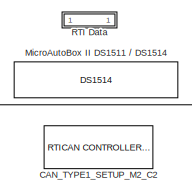
[diagram: root canvas - part 1/9, top center region]
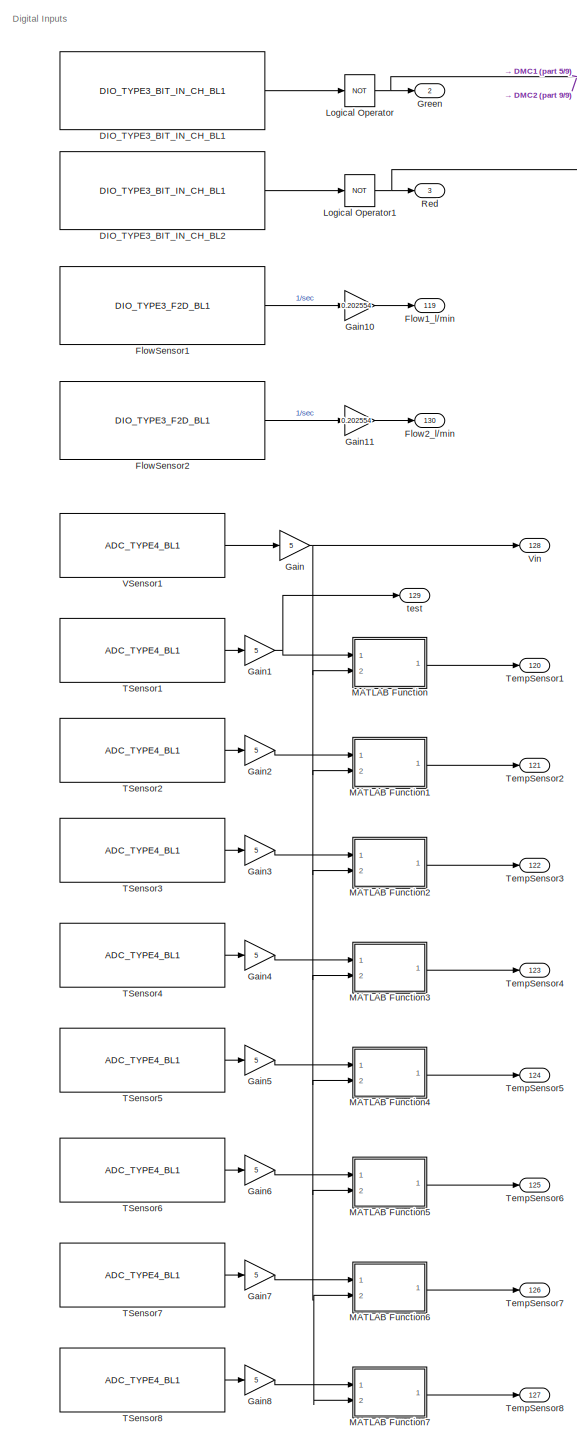
[diagram: root canvas - part 2/9, top left region]
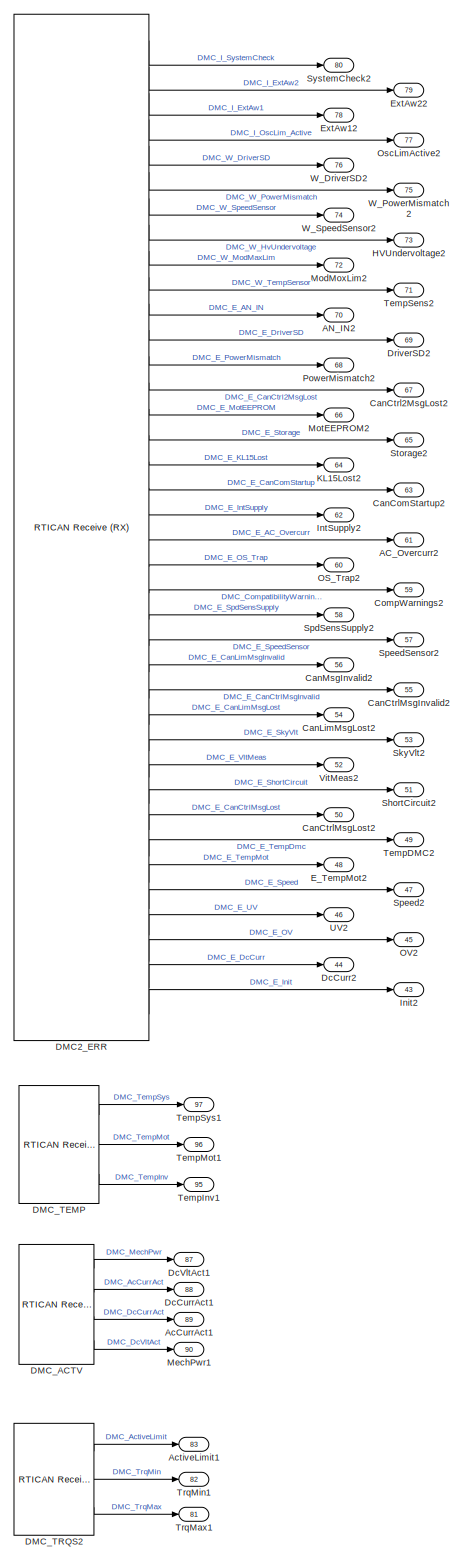
[diagram: root canvas - part 3/9, middle left region]
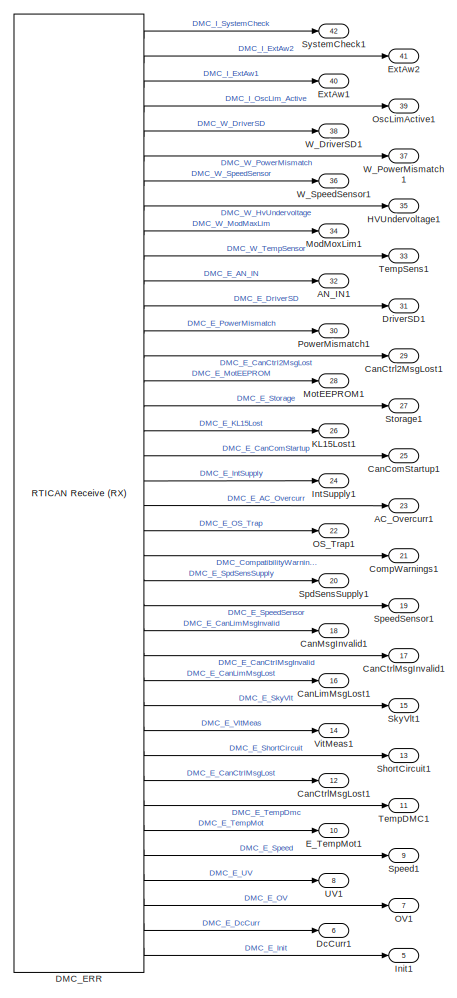
[diagram: root canvas - part 4/9, middle left region]
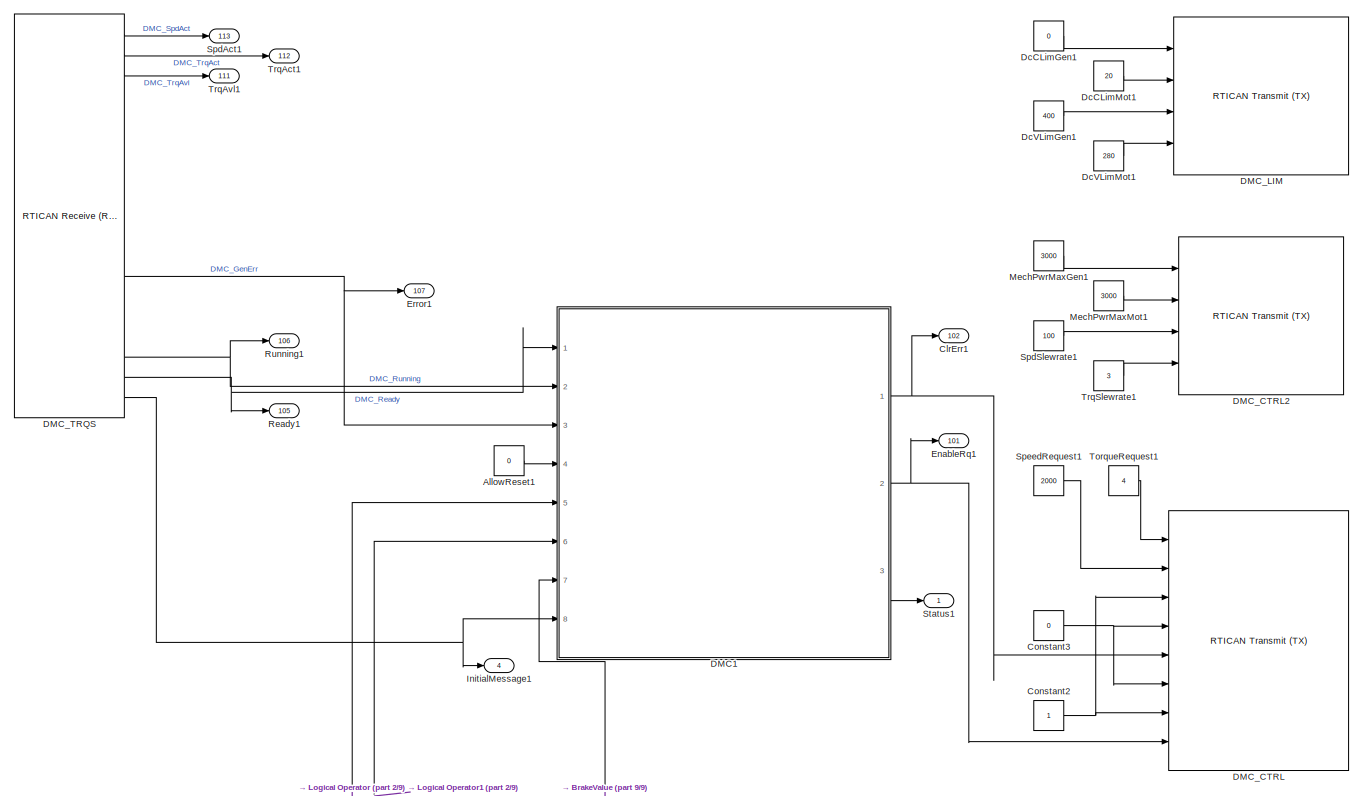
[diagram: root canvas - part 5/9, top right region]
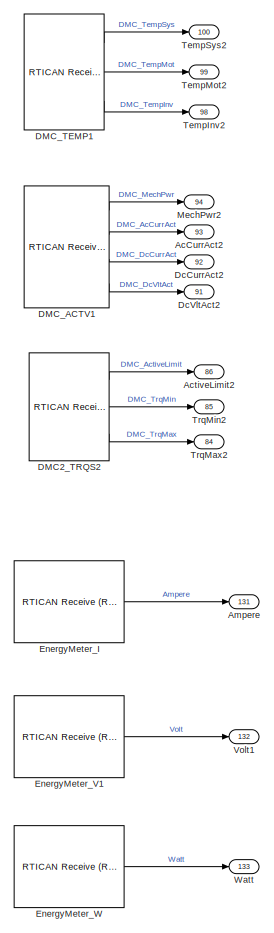
[diagram: root canvas - part 6/9, bottom left region]
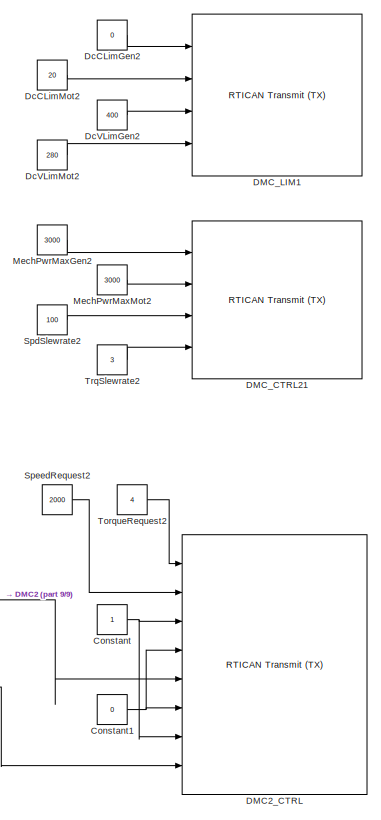
[diagram: root canvas - part 7/9, bottom right region]
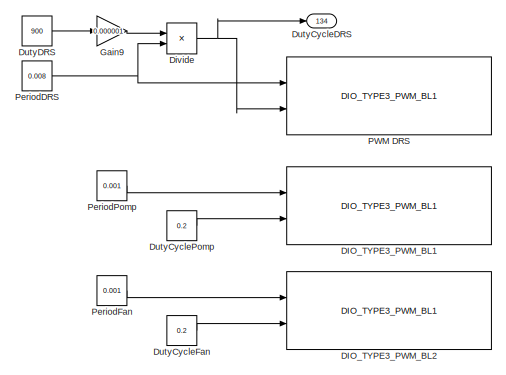
[diagram: root canvas - part 8/9, bottom right region]
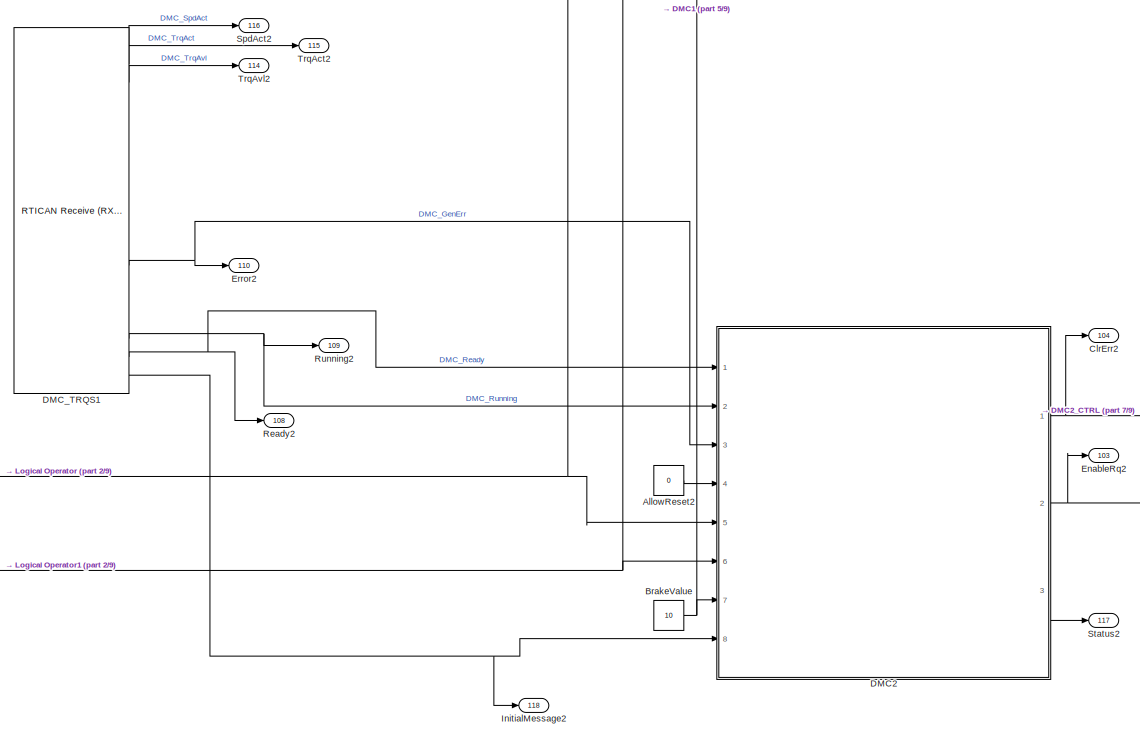
[diagram: root canvas - part 9/9, bottom center region]
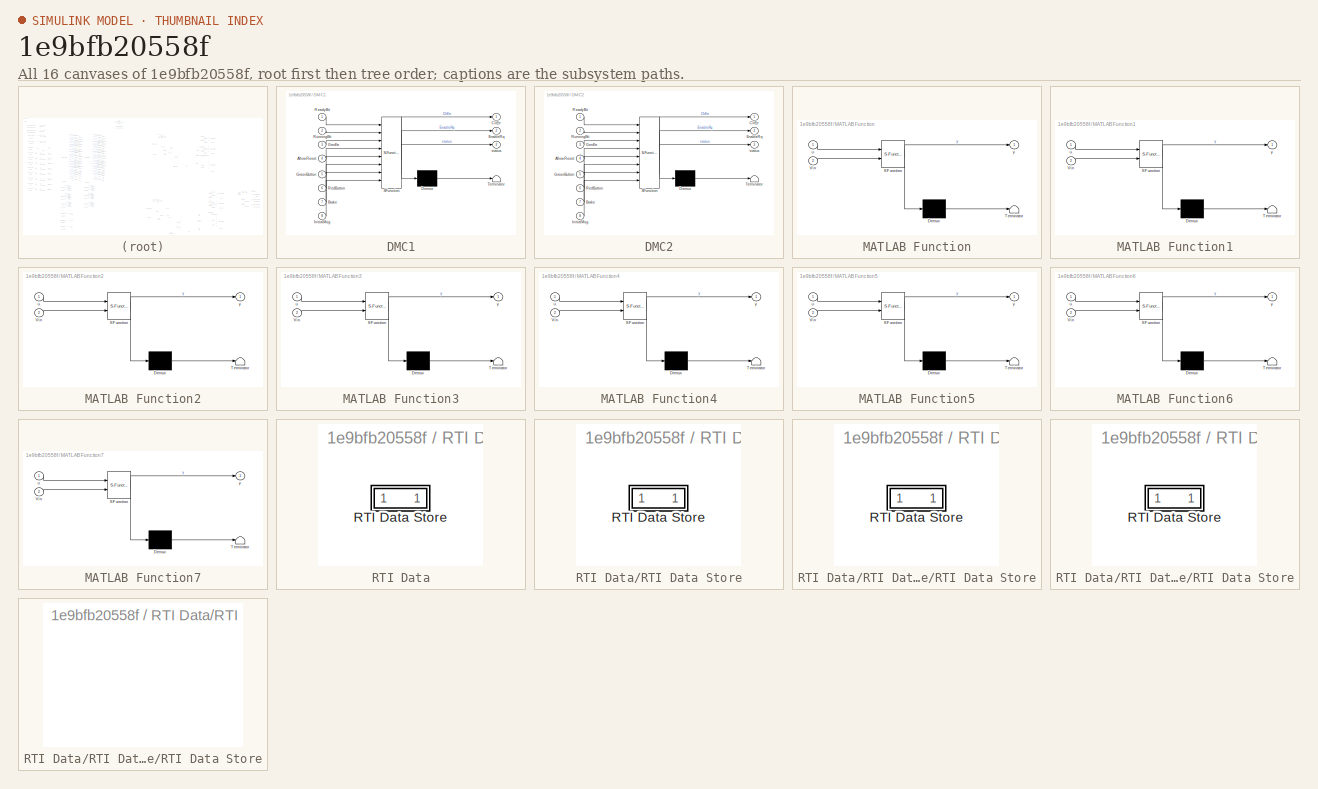
[diagram: thumbnail index - all 16 canvases of the model, root first then tree order]
MODEL slx_1e9bfb20558f
KIND model
CONFIG AbsTol = auto
CONFIG FixedStep = 0.001
CONFIG MaxStep = auto
CONFIG MinStep = auto
CONFIG PostLoadFcn = , if any(exist('dsrtsu_mdlpostloadfcn', 'file') == [2, 3, 6]), try dsrtsu_mdlpostloadfcn('Execute', bdroot); catch fprintf('Error in PostLoadFcn (dsrtsu_mdlpostloadfcn) for model "%s":\n %s\n', bdroot, lasterr); end, end, \n
CONFIG RelTol = 1e-3
CONFIG SampleTimeConstraint = Unconstrained
CONFIG Solver = ode1
CONFIG SolverMode = Auto
CONFIG SolverName = ode1
CONFIG StartTime = 0.0
CONFIG StopTime = Inf
BLOCK [Outport] AC_Overcurr1
  IconDisplay = Port number
  Port = 23
BLOCK [Outport] AC_Overcurr2
  IconDisplay = Port number
  Port = 61
BLOCK [Outport] AN_IN1
  IconDisplay = Port number
  Port = 32
BLOCK [Outport] AN_IN2
  IconDisplay = Port number
  Port = 70
BLOCK [Outport] AcCurrAct1
  IconDisplay = Port number
  Port = 89
BLOCK [Outport] AcCurrAct2
  IconDisplay = Port number
  Port = 93
BLOCK [Outport] ActiveLimit1
  IconDisplay = Port number
  Port = 83
BLOCK [Outport] ActiveLimit2
  IconDisplay = Port number
  Port = 86
BLOCK [Constant] AllowReset1
  Value = 0
BLOCK [Constant] AllowReset2
  Value = 0
BLOCK [Outport] Ampere
  IconDisplay = Port number
  Port = 131
BLOCK [Constant] BrakeValue
  Value = 10
BLOCK [Reference] CAN_TYPE1_SETUP_M2_C2  REF=rtican/RTICAN
CONTROLLER SETUP 
  AcceptanceMask = []
  ArbitrationField = []
  AttributesFormatString = Group Id: RTICAN1\n
  BoardNo = []
  BoardTypeNo = []
  ChannelNo = []
  DSProperties = struct('RTI',struct('Version',uint32(12),'BlockType',struct('isSLSource',uint8(0),'isSLSink',uint8(0),'isHWSource',uint8(0),'isHWSink',uint8(0),'isSetup',uint8(1),'isInline',uint8(1),'isNonInline',uint8(0),'isInterrupt',uint8(0),'isChannelwise',uint8(0)),'IOBoardType','RTICAN','UnitType','NON_MESSAGE','Identifier','MASTER','DialogType','ML','BlockSet','RTICAN','SlaveProcessor','CAN'))
  DialogFcn = []
  MS_Struct = []
  Parameters = []
  Ports = []
  RTIBlockInterface = struct('InputPortsWidth',int32(0),'InputPortsActive',0,'OutputPortsWidth',int32(0),'OutputPortsActive',0,'DialogFcn','rtican_master_setup_gui','BlockDisplay',{{['CAN CONTROLLER\n SETUP'],'center'}},'IconTransparency','on','InitLevel',3,'IWork',{{{'',uint32(2)}}},'BlockName',struct('Token',{{'CAN_TYPE','_SETUP_M','_C'}},'BlockParam',{{'BoardTypeNo','BoardNo','ChannelNo'}}),'ParameterTunableNames',{...<+4ch>
  RTIBlockParaDefault = struct('BoardTypeNo',4302,'BoardNo',1,'ChannelNo',1,'AcceptanceMask',0,'ArbitrationField',0,'Parameters',struct('Config',struct('Baudrate',500,'SampleMode',1,'UsedParamSet',1,'validSettings',1,'isBTRvalues',0,'Advanced',struct('Frequency',16000000,'BTR0',64,'BTR1',28,'Settings',struct('SMPL',0,'BRP',0,'NBT',16,'TSEG1',12,'TSEG2',1,'SJW',1,'SP',87))),'configType',1,'Options',struct('DataFileSelecte...<+2612ch>
  RTIBlockParameters = struct('BoardTypeNo',{{1,'OFF',[]}},'BoardNo',{{2,'ON',[1 16]}},'ChannelNo',{{2,'ON',[1 2]}},'AcceptanceMask',{{0,'OFF',[]}},'ArbitrationField',{{0,'OFF',[]}},'Parameters',{{struct('Config',struct('Baudrate',500,'SampleMode',1,'UsedParamSet',1,'validSettings',1,'isBTRvalues',0,'Advanced',struct('Baudrate',{500,500,500},'Frequency',{24000000,36000000,64000000},'Settings',{struct('SMPL',0,'BRP',0,'N...<+3226ch>
  RTISFcnParameters = struct('SFcnRTICANSettings','struct','SFcnRTICCPSettings','struct','SFcnRTIXCPSettings','struct','AcceptanceMask','int32','ArbitrationField','int32','TLCFileName','char')
  Reserved1 = []
  Reserved2 = []
  Reserved3 = []
  Reserved4 = []
  Revision = []
  SFcnRTICANSettings = []
  SourceBlock = rtican/RTICAN\nCONTROLLER SETUP
  SourceType = RTI
  UnitName = []
  UnitValues = []
BLOCK [Outport] CanComStartup1
  IconDisplay = Port number
  Port = 25
BLOCK [Outport] CanComStartup2
  IconDisplay = Port number
  Port = 63
BLOCK [Outport] CanCtrl2MsgLost1
  IconDisplay = Port number
  Port = 29
BLOCK [Outport] CanCtrl2MsgLost2
  IconDisplay = Port number
  Port = 67
BLOCK [Outport] CanCtrlMsgInvalid1
  IconDisplay = Port number
  Port = 17
BLOCK [Outport] CanCtrlMsgInvalid2
  IconDisplay = Port number
  Port = 55
BLOCK [Outport] CanCtrlMsgLost1
  IconDisplay = Port number
  Port = 12
BLOCK [Outport] CanCtrlMsgLost2
  IconDisplay = Port number
  Port = 50
BLOCK [Outport] CanLimMsgLost1
  IconDisplay = Port number
  Port = 16
BLOCK [Outport] CanLimMsgLost2
  IconDisplay = Port number
  Port = 54
BLOCK [Outport] CanMsgInvalid1
  IconDisplay = Port number
  Port = 18
BLOCK [Outport] CanMsgInvalid2
  IconDisplay = Port number
  Port = 56
BLOCK [Outport] ClrErr1
  IconDisplay = Port number
  Port = 102
BLOCK [Outport] ClrErr2
  IconDisplay = Port number
  Port = 104
BLOCK [Outport] CompWarnings1
  IconDisplay = Port number
  Port = 21
BLOCK [Outport] CompWarnings2
  IconDisplay = Port number
  Port = 59
BLOCK [Constant] Constant
BLOCK [Constant] Constant1
  Value = 0
BLOCK [Constant] Constant2
BLOCK [Constant] Constant3
  Value = 0
BLOCK [Reference] DIO_TYPE3_BIT_IN_CH_BL1  REF=rti1401lib_dio_type3/DIO_TYPE3_BIT_IN_CH_BL1
  DSProperties = struct('RTI',struct('Version',uint32(2),'BlockType',struct('isSLSource',uint8(1),'isSLSink',uint8(0),'isHWSource',uint8(1),'isHWSink',uint8(0),'isSetup',uint8(0),'isInline',uint8(1),'isNonInline',uint8(0),'isInterrupt',uint8(0),'isChannelwise',uint8(1)),'IOBoardType',{{'DS1401','STD','DIOT3'}},'UnitType','BIT','Identifier','BITINCH','DialogType','ML','BlockSet','NONE','SlaveProcessor','NONE'))
  Ports = [0, 1]
  RTIBlockInterface = struct('OutputPortsWidth',int32(1),'OutputPortsDataType',{{'SS_BOOLEAN'}},'OutputPortsActive',1,'OutputPortsName',{{'Out'}},'BlockDisplay',{{['DIO TP3 BIT IN\n Channelwise\nModule: 1\nPort: 1\nChannel: 1'],'center'}},'IconTransparency','on','InitLevel',3,'DialogFcn','rti1401stddiot3bitinchgui','BlockName',struct('Token',{{'DIO_TYPE3_BIT_IN_CH_BL1'}}))
  RTIBlockParaDefault = struct('ModuleNo',1,'PortNo',1,'ChannelNo',1,'TLCFileName','rti1401dio_t3_bit_in_ch','EnableInterrupt',0,'TriggerEdgeType',1)
  RTIBlockParameters = struct('ModuleNo',{{1,'OFF',[1 16]}},'PortNo',{{1,'OFF',[1 3]}},'ChannelNo',{{1,'OFF',[1 16]}},'TLCFileName',{{'rti1401dio_t3_bit_in_ch','OFF',[]}},'EnableInterrupt',{{0,'OFF',[0 1]}},'TriggerEdgeType',{{1,'OFF',[1 3]}})
  RTISFcnParameters = struct('ModuleNo','int32','PortNo','int16','ChannelNo','int16','TLCFileName','char','EnableInterrupt','int16','TriggerEdgeType','int32')
  SourceBlock = rti1401lib_dio_type3/DIO_TYPE3_BIT_IN_CH_BL1
  SourceType = RTI
BLOCK [Reference] DIO_TYPE3_BIT_IN_CH_BL2  REF=rti1401lib_dio_type3/DIO_TYPE3_BIT_IN_CH_BL1
  DSProperties = struct('RTI',struct('Version',uint32(2),'BlockType',struct('isSLSource',uint8(1),'isSLSink',uint8(0),'isHWSource',uint8(1),'isHWSink',uint8(0),'isSetup',uint8(0),'isInline',uint8(1),'isNonInline',uint8(0),'isInterrupt',uint8(0),'isChannelwise',uint8(1)),'IOBoardType',{{'DS1401','STD','DIOT3'}},'UnitType','BIT','Identifier','BITINCH','DialogType','ML','BlockSet','NONE','SlaveProcessor','NONE'))
  Ports = [0, 1]
  RTIBlockInterface = struct('OutputPortsWidth',int32(1),'OutputPortsDataType',{{'SS_BOOLEAN'}},'OutputPortsActive',1,'OutputPortsName',{{'Out'}},'BlockDisplay',{{['DIO TP3 BIT IN\n Channelwise\nModule: 1\nPort: 1\nChannel: 2'],'center'}},'IconTransparency','on','InitLevel',3,'DialogFcn','rti1401stddiot3bitinchgui','BlockName',struct('Token',{{'DIO_TYPE3_BIT_IN_CH_BL1'}}))
  RTIBlockParaDefault = struct('ModuleNo',1,'PortNo',1,'ChannelNo',1,'TLCFileName','rti1401dio_t3_bit_in_ch','EnableInterrupt',0,'TriggerEdgeType',1)
  RTIBlockParameters = struct('ModuleNo',{{1,'OFF',[1 16]}},'PortNo',{{1,'OFF',[1 3]}},'ChannelNo',{{2,'OFF',[1 16]}},'TLCFileName',{{'rti1401dio_t3_bit_in_ch','OFF',[]}},'EnableInterrupt',{{0,'OFF',[0 1]}},'TriggerEdgeType',{{1,'OFF',[1 3]}})
  RTISFcnParameters = struct('ModuleNo','int32','PortNo','int16','ChannelNo','int16','TLCFileName','char','EnableInterrupt','int16','TriggerEdgeType','int32')
  SourceBlock = rti1401lib_dio_type3/DIO_TYPE3_BIT_IN_CH_BL1
  SourceType = RTI
BLOCK [Reference] DIO_TYPE3_PWM_BL1  REF=rti1401lib_dio_type3/DIO_TYPE3_PWM_BL1
  DSProperties = struct('RTI',struct('Version',uint32(2),'BlockType',struct('isSLSource',uint8(0),'isSLSink',uint8(1),'isHWSource',uint8(0),'isHWSink',uint8(1),'isSetup',uint8(0),'isInline',uint8(1),'isNonInline',uint8(0),'isInterrupt',uint8(0),'isChannelwise',uint8(1)),'IOBoardType',{{'DS1401','STD','DIOT3'}},'UnitType','PWM','Identifier','PWM','DialogType','ML','BlockSet','NONE','SlaveProcessor','NONE'))  <repeated x3 — deduplicated; at blocks: DIO_TYPE3_PWM_BL1, DIO_TYPE3_PWM_BL2, PWM DRS>
  Ports = [2]
  RTIBlockInterface = struct('InputPortsWidth',int32([1 1]),'InputPortsActive',[1 1],'InputPortsName',{{'Period',['Duty Cycle']}},'BlockDisplay',{{['DIO TP3 PWM\nModule: 1\nPort: 1\nChannel: 8'],'center'}},'IconTransparency','on','InitLevel',3,'DialogFcn','rti1401stddiot3pwmgui','BlockName',struct('Token',{{'DIO_TYPE3_PWM_BL1'}}))
  RTIBlockParaDefault = struct('ModuleNo',1,'PortNo',1,'ChannelNo',1,'SupplyRailsCh',[1 1],'UpdateMode',1,'PeriodRange',7,'DutyCycleInit',0,'PeriodInit',5e-05,'TerminationMode',0,'OutputTermValidate',0,'OutputTermBuildCheck',0,'DutyCycleTerm',0,'PeriodTerm',5e-05,'TLCFileName','rti1401dio_t3_pwm','EnableInterrupt',0,'TriggerEdgeType',1)  <repeated x3 — deduplicated; at blocks: DIO_TYPE3_PWM_BL1, DIO_TYPE3_PWM_BL2, PWM DRS>
  RTIBlockParameters = struct('ModuleNo',{{1,'OFF',[1 16]}},'PortNo',{{1,'OFF',[1 3]}},'ChannelNo',{{8,'OFF',[1 16]}},'SupplyRailsCh',{{[1 1],'OFF',[0 1 0 1]}},'UpdateMode',{{1,'ON',[1 2]}},'PeriodRange',{{7,'OFF',[1 16]}},'DutyCycleInit',{{'0','OFF',[0 1]}},'PeriodInit',{{'5e-05','OFF',[]}},'TerminationMode',{{0,'OFF',[0 1]}},'OutputTermValidate',{{0,'OFF',[0 1]}},'OutputTermBuildCheck',{{0,'OFF',[]}},'DutyCycleTerm',{...<+172ch>
  RTISFcnParameters = struct('ModuleNo','int32','PortNo','int16','ChannelNo','int16','SupplyRailsCh','int16','UpdateMode','int16','PeriodRange','int16','DutyCycleInit','double','PeriodInit','double','TerminationMode','int16','OutputTermValidate','int16','DutyCycleTerm','double','PeriodTerm','double','TLCFileName','char','EnableInterrupt','int16','TriggerEdgeType','int32')  <repeated x3 — deduplicated; at blocks: DIO_TYPE3_PWM_BL1, DIO_TYPE3_PWM_BL2, PWM DRS>
  SourceBlock = rti1401lib_dio_type3/DIO_TYPE3_PWM_BL1
  SourceType = RTI
BLOCK [Reference] DIO_TYPE3_PWM_BL2  REF=rti1401lib_dio_type3/DIO_TYPE3_PWM_BL1
  Ports = [2]
  RTIBlockInterface = struct('InputPortsWidth',int32([1 1]),'InputPortsActive',[1 1],'InputPortsName',{{'Period',['Duty Cycle']}},'BlockDisplay',{{['DIO TP3 PWM\nModule: 1\nPort: 1\nChannel: 7'],'center'}},'IconTransparency','on','InitLevel',3,'DialogFcn','rti1401stddiot3pwmgui','BlockName',struct('Token',{{'DIO_TYPE3_PWM_BL1'}}))
  RTIBlockParameters = struct('ModuleNo',{{1,'OFF',[1 16]}},'PortNo',{{1,'OFF',[1 3]}},'ChannelNo',{{7,'OFF',[1 16]}},'SupplyRailsCh',{{[1 1],'OFF',[0 1 0 1]}},'UpdateMode',{{1,'ON',[1 2]}},'PeriodRange',{{7,'OFF',[1 16]}},'DutyCycleInit',{{'0','OFF',[0 1]}},'PeriodInit',{{'5e-05','OFF',[]}},'TerminationMode',{{0,'OFF',[0 1]}},'OutputTermValidate',{{0,'OFF',[0 1]}},'OutputTermBuildCheck',{{0,'OFF',[]}},'DutyCycleTerm',{...<+172ch>
  SourceBlock = rti1401lib_dio_type3/DIO_TYPE3_PWM_BL1
  SourceType = RTI
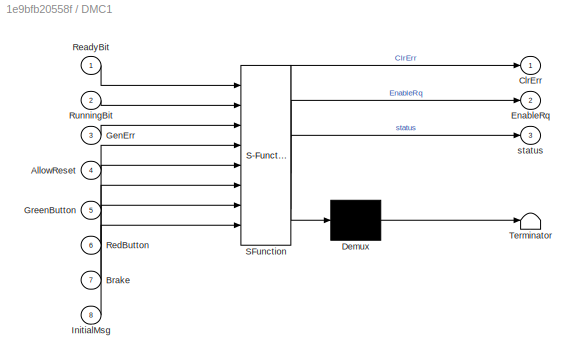
BLOCK [SubSystem] DMC1
  ErrorFcn = Stateflow.Translate.translate
  PermitHierarchicalResolution = ExplicitOnly
  Ports = [8, 3]
  RequestExecContextInheritance = off
  SFBlockType = Chart
  TreatAsAtomicUnit = on
BLOCK [Demux] DMC1/ Demux 
  Outputs = 1
  Ports = [1, 1]
BLOCK [S-Function] DMC1/ SFunction 
  EnableBusSupport = on
  FunctionName = sf_sfun
  PortCounts = [8 4]
  Ports = [8, 4]
  Tag = Stateflow S-Function StateMachine_v2 1
BLOCK [Terminator] DMC1/ Terminator 
BLOCK [Inport] DMC1/AllowReset
  IconDisplay = Port number
  Port = 4
BLOCK [Inport] DMC1/Brake
  IconDisplay = Port number
  Port = 7
BLOCK [Outport] DMC1/ClrErr
  IconDisplay = Port number
BLOCK [Outport] DMC1/EnableRq
  IconDisplay = Port number
  Port = 2
BLOCK [Inport] DMC1/GenErr
  IconDisplay = Port number
  Port = 3
BLOCK [Inport] DMC1/GreenButton
  IconDisplay = Port number
  Port = 5
BLOCK [Inport] DMC1/InitialMsg
  IconDisplay = Port number
  Port = 8
BLOCK [Inport] DMC1/ReadyBit
  IconDisplay = Port number
BLOCK [Inport] DMC1/RedButton
  IconDisplay = Port number
  Port = 6
BLOCK [Inport] DMC1/RunningBit
  IconDisplay = Port number
  Port = 2
BLOCK [Outport] DMC1/status
  IconDisplay = Port number
  Port = 3
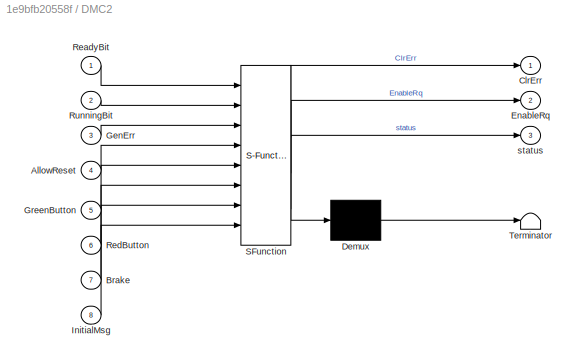
BLOCK [SubSystem] DMC2
  ErrorFcn = Stateflow.Translate.translate
  PermitHierarchicalResolution = ExplicitOnly
  Ports = [8, 3]
  RequestExecContextInheritance = off
  SFBlockType = Chart
  TreatAsAtomicUnit = on
BLOCK [Demux] DMC2/ Demux 
  Outputs = 1
  Ports = [1, 1]
BLOCK [S-Function] DMC2/ SFunction 
  EnableBusSupport = on
  FunctionName = sf_sfun
  PortCounts = [8 4]
  Ports = [8, 4]
  Tag = Stateflow S-Function StateMachine_v2 3
BLOCK [Terminator] DMC2/ Terminator 
BLOCK [Inport] DMC2/AllowReset
  IconDisplay = Port number
  Port = 4
BLOCK [Inport] DMC2/Brake
  IconDisplay = Port number
  Port = 7
BLOCK [Outport] DMC2/ClrErr
  IconDisplay = Port number
BLOCK [Outport] DMC2/EnableRq
  IconDisplay = Port number
  Port = 2
BLOCK [Inport] DMC2/GenErr
  IconDisplay = Port number
  Port = 3
BLOCK [Inport] DMC2/GreenButton
  IconDisplay = Port number
  Port = 5
BLOCK [Inport] DMC2/InitialMsg
  IconDisplay = Port number
  Port = 8
BLOCK [Inport] DMC2/ReadyBit
  IconDisplay = Port number
BLOCK [Inport] DMC2/RedButton
  IconDisplay = Port number
  Port = 6
BLOCK [Inport] DMC2/RunningBit
  IconDisplay = Port number
  Port = 2
BLOCK [Outport] DMC2/status
  IconDisplay = Port number
  Port = 3
BLOCK [Reference] DMC2_CTRL  REF=rtican/RTICAN
Transmit (TX) 
  AttributesFormatString = Group Id: RTICAN1\n
  BoardNo = []
  BoardTypeNo = []
  ChannelNo = []
  DSProperties = struct('RTI',struct('Version',uint32(5),'BlockType',struct('isSLSource',uint8(1),'isSLSink',uint8(1),'isHWSource',uint8(0),'isHWSink',uint8(0),'isSetup',uint8(0),'isInline',uint8(1),'isNonInline',uint8(0),'isInterrupt',uint8(0),'isChannelwise',uint8(0)),'IOBoardType','RTICAN','UnitType','MESSAGE','Identifier','TX','DialogType','MSVC','BlockSet','RTICAN','SlaveProcessor','CAN'))  <repeated x6 — deduplicated; at blocks: DMC2_CTRL, DMC_CTRL, DMC_CTRL2, DMC_CTRL21, DMC_LIM, DMC_LIM1>
  DialogFcn = []
  Msg_Struct = []
  Parameters = []
  Ports = [8]
  RTIBlockInterface = struct('InputPortsWidth',int32([1 1 1 1 1 1 1 1]),'InputPortsActive',[1 1 1 1 1 1 1 1],'InputPortsName',{{'DMC_TrqRq','DMC_SpdRq','DMC_PosTrqSpd','DMC_NegTrqSpd','DMC_ClrError','DMC_OscLimEnableRq','DMC_ModeRq','DMC_EnableRq'}},'InputPortsDataType',{{'SS_DOUBLE','SS_DOUBLE','SS_DOUBLE','SS_DOUBLE','SS_DOUBLE','SS_DOUBLE','SS_DOUBLE','SS_DOUBLE'}},'OutputPortsWidth',int32(0),'OutputPortsActive',0,'...<+250ch>
  RTIBlockParaDefault = struct('BoardTypeNo',4302,'BoardNo',1,'ChannelNo',1,'Parameters',struct('DataFileSupport',struct('DataFileSelectedMaster',0,'DataFileSelectedLocal',0,'DataFileName','','DataFileDate','','SelectedFile',['<no file selected>']),'Options',struct('StatusSelected',1,'TimeSelected',1,'DeltaTimeSelected',1,'DelayTimeSelected',1,'DelayTimeTXCommandSelected',0,'EncodeSetUnusedBitsToOne',0,'EnableMsgLoopback...<+2557ch>  <repeated x6 — deduplicated; at blocks: DMC2_CTRL, DMC_CTRL, DMC_CTRL2, DMC_CTRL21, DMC_LIM, DMC_LIM1>
  RTIBlockParameters = struct('BoardTypeNo',{{1,'OFF',[]}},'BoardNo',{{2,'ON',[1 16]}},'ChannelNo',{{2,'ON',[1 2]}},'Parameters',{{struct('DataFileSupport',struct('DataFileSelectedMaster',1,'DataFileSelectedLocal',0,'DataFileName','<path>|','DataFileDate',{{{['14-dec-2011 16:00:26']}}},'SelectedFile',['<no file selected>']),'Options...<+4711ch>
  RTISFcnParameters = struct('SFcnRTICANMessage','struct','TLCFileName','char')
  Reserved1 = []
  Reserved2 = []
  Reserved3 = []
  Reserved4 = []
  Revision = []
  SfcnMessage = []
  SourceBlock = rtican/RTICAN\nTransmit (TX)
  SourceType = RTI
  UnitName = []
  UnitValues = []
BLOCK [Reference] DMC2_ERR  REF=rtican/RTICAN
Receive (RX) 
  AttributesFormatString = Group Id: RTICAN1\n
  BoardNo = []
  BoardTypeNo = []
  ChannelNo = []
  DSProperties = struct('RTI',struct('Version',uint32(5),'BlockType',struct('isSLSource',uint8(1),'isSLSink',uint8(1),'isHWSource',uint8(0),'isHWSink',uint8(0),'isSetup',uint8(0),'isInline',uint8(1),'isNonInline',uint8(0),'isInterrupt',uint8(0),'isChannelwise',uint8(0)),'IOBoardType','RTICAN','UnitType','MESSAGE','Identifier','RX','DialogType','MSVC','BlockSet','RTICAN','SlaveProcessor','CAN'))  <repeated x13 — deduplicated; at blocks: DMC2_ERR, DMC2_TRQS2, DMC_ACTV, DMC_ACTV1, DMC_ERR, DMC_TEMP, DMC_TEMP1, DMC_TRQS, DMC_TRQS1, DMC_TRQS2, EnergyMeter_I, EnergyMeter_V1, EnergyMeter_W>
  DialogFcn = []
  Msg_Struct = []
  Parameters = []
  Ports = [0, 38]
  RTIBlockInterface = struct('OutputPortsWidth',int32([1 1 1 1 1 1 1 1 1 1 1 1 1 1 1 1 1 1 1 1 1 1 1 1 1 1 1 1 1 1 1 1 1 1 1 1 1 1]),'OutputPortsActive',[1 1 1 1 1 1 1 1 1 1 1 1 1 1 1 1 1 1 1 1 1 1 1 1 1 1 1 1 1 1 1 1 1 1 1 1 1 1],'OutputPortsName',{{'DMC_I_SystemCheck','DMC_I_ExtAw2','DMC_I_ExtAw1','DMC_I_OscLim_Active','DMC_W_DriverSD','DMC_W_PowerMismatch','DMC_W_SpeedSensor','DMC_W_HvUndervoltage','DMC_W_ModMaxLim'...<+2082ch>
  RTIBlockParaDefault = struct('BoardTypeNo',4302,'BoardNo',1,'ChannelNo',1,'Parameters',struct('DataFileSupport',struct('DataFileSelectedMaster',0,'DataFileSelectedLocal',0,'DataFileName','','DataFileDate','','SelectedFile',['<no file selected>']),'Options',struct('StatusSelected',1,'TimeSelected',1,'DeltaTimeSelected',1,'BytePortSelected',0,'MessageLengthSelected',0,'TriggerPort',struct('Selected',0,'TriggerType','risi...<+1681ch>  <repeated x13 — deduplicated; at blocks: DMC2_ERR, DMC2_TRQS2, DMC_ACTV, DMC_ACTV1, DMC_ERR, DMC_TEMP, DMC_TEMP1, DMC_TRQS, DMC_TRQS1, DMC_TRQS2, EnergyMeter_I, EnergyMeter_V1, EnergyMeter_W>
  RTIBlockParameters = struct('BoardTypeNo',{{1,'OFF',[]}},'BoardNo',{{2,'ON',[1 16]}},'ChannelNo',{{2,'ON',[1 2]}},'Parameters',{{struct('DataFileSupport',struct('DataFileSelectedMaster',1,'DataFileSelectedLocal',0,'DataFileName','<path>|','DataFileDate',{{{['14-dec-2011 16:00:26']}}},'SelectedFile','..\brusa_02-01-02_rev02-2\docum...<+9193ch>
  RTISFcnParameters = struct('SFcnRTICANMessage','struct','TLCFileName','char')
  Reserved1 = []
  Reserved2 = []
  Reserved3 = []
  Reserved4 = []
  Revision = []
  SfcnMessage = []
  SourceBlock = rtican/RTICAN\nReceive (RX)
  SourceType = RTI
  UnitName = []
  UnitValues = []
BLOCK [Reference] DMC2_TRQS2  REF=rtican/RTICAN
Receive (RX) 
  AttributesFormatString = Group Id: RTICAN1\n
  BoardNo = []
  BoardTypeNo = []
  ChannelNo = []
  DialogFcn = []
  Msg_Struct = []
  Parameters = []
  Ports = [0, 3]
  RTIBlockInterface = struct('OutputPortsWidth',int32([1 1 1]),'OutputPortsActive',[1 1 1],'OutputPortsName',{{'DMC_ActiveLimit','DMC_TrqMin','DMC_TrqMax'}},'OutputPortsDataType',{{'SS_DOUBLE','SS_DOUBLE','SS_DOUBLE'}},'OutputPortsLabel',{{'DMC_ActiveLimit','DMC_TrqMin','DMC_TrqMax'}},'OutputPortsLabelMode','ON','InputPortsWidth',int32(0),'InputPortsActive',0,'DialogFcn','rtican_message_interface_gui','BlockDisplay',{{...<+194ch>
  RTIBlockParameters = struct('BoardTypeNo',{{1,'OFF',[]}},'BoardNo',{{2,'ON',[1 16]}},'ChannelNo',{{2,'ON',[1 2]}},'Parameters',{{struct('DataFileSupport',struct('DataFileSelectedMaster',1,'DataFileSelectedLocal',0,'DataFileName','<path>|','DataFileDate',{{{['14-dec-2011 16:00:26']}}},'SelectedFile','..\brusa_02-01-02_rev02-2\docum...<+2382ch>
  RTISFcnParameters = struct('SFcnRTICANMessage','struct','TLCFileName','char')
  Reserved1 = []
  Reserved2 = []
  Reserved3 = []
  Reserved4 = []
  Revision = []
  SfcnMessage = []
  SourceBlock = rtican/RTICAN\nReceive (RX)
  SourceType = RTI
  UnitName = []
  UnitValues = []
BLOCK [Reference] DMC_ACTV  REF=rtican/RTICAN
Receive (RX) 
  AttributesFormatString = Group Id: RTICAN1\n
  BoardNo = []
  BoardTypeNo = []
  ChannelNo = []
  DialogFcn = []
  Msg_Struct = []
  Parameters = []
  Ports = [0, 4]
  RTIBlockInterface = struct('OutputPortsWidth',int32([1 1 1 1]),'OutputPortsActive',[1 1 1 1],'OutputPortsName',{{'DMC_MechPwr','DMC_AcCurrAct','DMC_DcCurrAct','DMC_DcVltAct'}},'OutputPortsDataType',{{'SS_DOUBLE','SS_DOUBLE','SS_DOUBLE','SS_DOUBLE'}},'OutputPortsLabel',{{'DMC_MechPwr','DMC_AcCurrAct','DMC_DcCurrAct','DMC_DcVltAct'}},'OutputPortsLabelMode','ON','InputPortsWidth',int32(0),'InputPortsActive',0,'DialogFcn...<+243ch>
  RTIBlockParameters = struct('BoardTypeNo',{{1,'OFF',[]}},'BoardNo',{{2,'ON',[1 16]}},'ChannelNo',{{2,'ON',[1 2]}},'Parameters',{{struct('DataFileSupport',struct('DataFileSelectedMaster',1,'DataFileSelectedLocal',1,'DataFileName','<path>|','DataFileDate',{{{['14-dec-2011 16:00:26']}}},'SelectedFile','..\brusa_02-01-02_rev02-2\docum...<+2582ch>
  RTISFcnParameters = struct('SFcnRTICANMessage','struct','TLCFileName','char')
  Reserved1 = []
  Reserved2 = []
  Reserved3 = []
  Reserved4 = []
  Revision = []
  SfcnMessage = []
  SourceBlock = rtican/RTICAN\nReceive (RX)
  SourceType = RTI
  UnitName = []
  UnitValues = []
BLOCK [Reference] DMC_ACTV1  REF=rtican/RTICAN
Receive (RX) 
  AttributesFormatString = Group Id: RTICAN1\n
  BoardNo = []
  BoardTypeNo = []
  ChannelNo = []
  DialogFcn = []
  Msg_Struct = []
  Parameters = []
  Ports = [0, 4]
  RTIBlockInterface = struct('OutputPortsWidth',int32([1 1 1 1]),'OutputPortsActive',[1 1 1 1],'OutputPortsName',{{'DMC_MechPwr','DMC_AcCurrAct','DMC_DcCurrAct','DMC_DcVltAct'}},'OutputPortsDataType',{{'SS_DOUBLE','SS_DOUBLE','SS_DOUBLE','SS_DOUBLE'}},'OutputPortsLabel',{{'DMC_MechPwr','DMC_AcCurrAct','DMC_DcCurrAct','DMC_DcVltAct'}},'OutputPortsLabelMode','ON','InputPortsWidth',int32(0),'InputPortsActive',0,'DialogFcn...<+243ch>
  RTIBlockParameters = struct('BoardTypeNo',{{1,'OFF',[]}},'BoardNo',{{2,'ON',[1 16]}},'ChannelNo',{{2,'ON',[1 2]}},'Parameters',{{struct('DataFileSupport',struct('DataFileSelectedMaster',1,'DataFileSelectedLocal',0,'DataFileName','<path>|','DataFileDate',{{{['14-dec-2011 16:00:26']}}},'SelectedFile','..\brusa_02-01-02_rev02-2\docum...<+2582ch>
  RTISFcnParameters = struct('SFcnRTICANMessage','struct','TLCFileName','char')
  Reserved1 = []
  Reserved2 = []
  Reserved3 = []
  Reserved4 = []
  Revision = []
  SfcnMessage = []
  SourceBlock = rtican/RTICAN\nReceive (RX)
  SourceType = RTI
  UnitName = []
  UnitValues = []
BLOCK [Reference] DMC_CTRL  REF=rtican/RTICAN
Transmit (TX) 
  AttributesFormatString = Group Id: RTICAN1\n
  BoardNo = []
  BoardTypeNo = []
  ChannelNo = []
  DialogFcn = []
  Msg_Struct = []
  Parameters = []
  Ports = [8]
  RTIBlockInterface = struct('InputPortsWidth',int32([1 1 1 1 1 1 1 1]),'InputPortsActive',[1 1 1 1 1 1 1 1],'InputPortsName',{{'DMC_TrqRq','DMC_SpdRq','DMC_PosTrqSpd','DMC_NegTrqSpd','DMC_ClrError','DMC_OscLimEnableRq','DMC_ModeRq','DMC_EnableRq'}},'InputPortsDataType',{{'SS_DOUBLE','SS_DOUBLE','SS_DOUBLE','SS_DOUBLE','SS_DOUBLE','SS_DOUBLE','SS_DOUBLE','SS_DOUBLE'}},'OutputPortsWidth',int32(0),'OutputPortsActive',0,'...<+250ch>
  RTIBlockParameters = struct('BoardTypeNo',{{1,'OFF',[]}},'BoardNo',{{2,'ON',[1 16]}},'ChannelNo',{{2,'ON',[1 2]}},'Parameters',{{struct('DataFileSupport',struct('DataFileSelectedMaster',1,'DataFileSelectedLocal',1,'DataFileName','<path>|','DataFileDate',{{{['14-dec-2011 16:00:26']}}},'SelectedFile','..\brusa_02-01-02_rev02-2\docum...<+4749ch>
  RTISFcnParameters = struct('SFcnRTICANMessage','struct','TLCFileName','char')
  Reserved1 = []
  Reserved2 = []
  Reserved3 = []
  Reserved4 = []
  Revision = []
  SfcnMessage = []
  SourceBlock = rtican/RTICAN\nTransmit (TX)
  SourceType = RTI
  UnitName = []
  UnitValues = []
BLOCK [Reference] DMC_CTRL2  REF=rtican/RTICAN
Transmit (TX) 
  AttributesFormatString = Group Id: RTICAN1\n
  BoardNo = []
  BoardTypeNo = []
  ChannelNo = []
  DialogFcn = []
  Msg_Struct = []
  Parameters = []
  Ports = [4]
  RTIBlockInterface = struct('InputPortsWidth',int32([1 1 1 1]),'InputPortsActive',[1 1 1 1],'InputPortsName',{{'DMC_MechPwrMaxGen','DMC_MechPwrMaxMot','DMC_SpdSlewrate','DMC_TrqSlewrate'}},'InputPortsDataType',{{'SS_DOUBLE','SS_DOUBLE','SS_DOUBLE','SS_DOUBLE'}},'OutputPortsWidth',int32(0),'OutputPortsActive',0,'OutputPortsName',{{''}},'DialogFcn','rtican_message_interface_gui','BlockDisplay',{{'','center'}},'IconTrans...<+143ch>
  RTIBlockParameters = struct('BoardTypeNo',{{1,'OFF',[]}},'BoardNo',{{2,'ON',[1 16]}},'ChannelNo',{{2,'ON',[1 2]}},'Parameters',{{struct('DataFileSupport',struct('DataFileSelectedMaster',1,'DataFileSelectedLocal',1,'DataFileName','<path>|','DataFileDate',{{{['14-dec-2011 16:00:26']}}},'SelectedFile','..\brusa_02-01-02_rev02-2\docum...<+3598ch>
  RTISFcnParameters = struct('SFcnRTICANMessage','struct','TLCFileName','char')
  Reserved1 = []
  Reserved2 = []
  Reserved3 = []
  Reserved4 = []
  Revision = []
  SfcnMessage = []
  SourceBlock = rtican/RTICAN\nTransmit (TX)
  SourceType = RTI
  UnitName = []
  UnitValues = []
BLOCK [Reference] DMC_CTRL21  REF=rtican/RTICAN
Transmit (TX) 
  AttributesFormatString = Group Id: RTICAN1\n
  BoardNo = []
  BoardTypeNo = []
  ChannelNo = []
  DialogFcn = []
  Msg_Struct = []
  Parameters = []
  Ports = [4]
  RTIBlockInterface = struct('InputPortsWidth',int32([1 1 1 1]),'InputPortsActive',[1 1 1 1],'InputPortsName',{{'DMC_MechPwrMaxGen','DMC_MechPwrMaxMot','DMC_SpdSlewrate','DMC_TrqSlewrate'}},'InputPortsDataType',{{'SS_DOUBLE','SS_DOUBLE','SS_DOUBLE','SS_DOUBLE'}},'OutputPortsWidth',int32(0),'OutputPortsActive',0,'OutputPortsName',{{''}},'DialogFcn','rtican_message_interface_gui','BlockDisplay',{{'','center'}},'IconTrans...<+143ch>
  RTIBlockParameters = struct('BoardTypeNo',{{1,'OFF',[]}},'BoardNo',{{2,'ON',[1 16]}},'ChannelNo',{{2,'ON',[1 2]}},'Parameters',{{struct('DataFileSupport',struct('DataFileSelectedMaster',1,'DataFileSelectedLocal',0,'DataFileName','<path>|','DataFileDate',{{{['14-dec-2011 16:00:26']}}},'SelectedFile',['<no file selected>']),'Options...<+3557ch>
  RTISFcnParameters = struct('SFcnRTICANMessage','struct','TLCFileName','char')
  Reserved1 = []
  Reserved2 = []
  Reserved3 = []
  Reserved4 = []
  Revision = []
  SfcnMessage = []
  SourceBlock = rtican/RTICAN\nTransmit (TX)
  SourceType = RTI
  UnitName = []
  UnitValues = []
BLOCK [Reference] DMC_ERR  REF=rtican/RTICAN
Receive (RX) 
  AttributesFormatString = Group Id: RTICAN1\n
  BoardNo = []
  BoardTypeNo = []
  ChannelNo = []
  DialogFcn = []
  Msg_Struct = []
  Parameters = []
  Ports = [0, 38]
  RTIBlockInterface = struct('OutputPortsWidth',int32([1 1 1 1 1 1 1 1 1 1 1 1 1 1 1 1 1 1 1 1 1 1 1 1 1 1 1 1 1 1 1 1 1 1 1 1 1 1]),'OutputPortsActive',[1 1 1 1 1 1 1 1 1 1 1 1 1 1 1 1 1 1 1 1 1 1 1 1 1 1 1 1 1 1 1 1 1 1 1 1 1 1],'OutputPortsName',{{'DMC_I_SystemCheck','DMC_I_ExtAw2','DMC_I_ExtAw1','DMC_I_OscLim_Active','DMC_W_DriverSD','DMC_W_PowerMismatch','DMC_W_SpeedSensor','DMC_W_HvUndervoltage','DMC_W_ModMaxLim'...<+2082ch>
  RTIBlockParameters = struct('BoardTypeNo',{{1,'OFF',[]}},'BoardNo',{{2,'ON',[1 16]}},'ChannelNo',{{2,'ON',[1 2]}},'Parameters',{{struct('DataFileSupport',struct('DataFileSelectedMaster',1,'DataFileSelectedLocal',1,'DataFileName','<path>|','DataFileDate',{{{['14-dec-2011 16:00:26']}}},'SelectedFile','..\brusa_02-01-02_rev02-2\docum...<+9193ch>
  RTISFcnParameters = struct('SFcnRTICANMessage','struct','TLCFileName','char')
  Reserved1 = []
  Reserved2 = []
  Reserved3 = []
  Reserved4 = []
  Revision = []
  SfcnMessage = []
  SourceBlock = rtican/RTICAN\nReceive (RX)
  SourceType = RTI
  UnitName = []
  UnitValues = []
BLOCK [Reference] DMC_LIM  REF=rtican/RTICAN
Transmit (TX) 
  AttributesFormatString = Group Id: RTICAN1\n
  BoardNo = []
  BoardTypeNo = []
  ChannelNo = []
  DialogFcn = []
  Msg_Struct = []
  Parameters = []
  Ports = [4]
  RTIBlockInterface = struct('InputPortsWidth',int32([1 1 1 1]),'InputPortsActive',[1 1 1 1],'InputPortsName',{{'DMC_DcCLimGen','DMC_DcCLimMot','DMC_DcVLimGen','DMC_DcVLimMot'}},'InputPortsDataType',{{'SS_DOUBLE','SS_DOUBLE','SS_DOUBLE','SS_DOUBLE'}},'OutputPortsWidth',int32(0),'OutputPortsActive',0,'OutputPortsName',{{''}},'DialogFcn','rtican_message_interface_gui','BlockDisplay',{{'','center'}},'IconTransparency','on...<+128ch>
  RTIBlockParameters = struct('BoardTypeNo',{{1,'OFF',[]}},'BoardNo',{{2,'ON',[1 16]}},'ChannelNo',{{2,'ON',[1 2]}},'Parameters',{{struct('DataFileSupport',struct('DataFileSelectedMaster',1,'DataFileSelectedLocal',1,'DataFileName','<path>|','DataFileDate',{{{['14-dec-2011 16:00:26']}}},'SelectedFile','..\brusa_02-01-02_rev02-2\docum...<+3374ch>
  RTISFcnParameters = struct('SFcnRTICANMessage','struct','TLCFileName','char')
  Reserved1 = []
  Reserved2 = []
  Reserved3 = []
  Reserved4 = []
  Revision = []
  SfcnMessage = []
  SourceBlock = rtican/RTICAN\nTransmit (TX)
  SourceType = RTI
  UnitName = []
  UnitValues = []
BLOCK [Reference] DMC_LIM1  REF=rtican/RTICAN
Transmit (TX) 
  AttributesFormatString = Group Id: RTICAN1\n
  BoardNo = []
  BoardTypeNo = []
  ChannelNo = []
  DialogFcn = []
  Msg_Struct = []
  Parameters = []
  Ports = [4]
  RTIBlockInterface = struct('InputPortsWidth',int32([1 1 1 1]),'InputPortsActive',[1 1 1 1],'InputPortsName',{{'DMC_DcCLimGen','DMC_DcCLimMot','DMC_DcVLimGen','DMC_DcVLimMot'}},'InputPortsDataType',{{'SS_DOUBLE','SS_DOUBLE','SS_DOUBLE','SS_DOUBLE'}},'OutputPortsWidth',int32(0),'OutputPortsActive',0,'OutputPortsName',{{''}},'DialogFcn','rtican_message_interface_gui','BlockDisplay',{{'','center'}},'IconTransparency','on...<+128ch>
  RTIBlockParameters = struct('BoardTypeNo',{{1,'OFF',[]}},'BoardNo',{{2,'ON',[1 16]}},'ChannelNo',{{2,'ON',[1 2]}},'Parameters',{{struct('DataFileSupport',struct('DataFileSelectedMaster',1,'DataFileSelectedLocal',0,'DataFileName','<path>|','DataFileDate',{{{['14-dec-2011 16:00:26']}}},'SelectedFile',['<no file selected>']),'Options...<+3333ch>
  RTISFcnParameters = struct('SFcnRTICANMessage','struct','TLCFileName','char')
  Reserved1 = []
  Reserved2 = []
  Reserved3 = []
  Reserved4 = []
  Revision = []
  SfcnMessage = []
  SourceBlock = rtican/RTICAN\nTransmit (TX)
  SourceType = RTI
  UnitName = []
  UnitValues = []
BLOCK [Reference] DMC_TEMP  REF=rtican/RTICAN
Receive (RX) 
  AttributesFormatString = Group Id: RTICAN1\n
  BoardNo = []
  BoardTypeNo = []
  ChannelNo = []
  DialogFcn = []
  Msg_Struct = []
  Parameters = []
  Ports = [0, 3]
  RTIBlockInterface = struct('OutputPortsWidth',int32([1 1 1]),'OutputPortsActive',[1 1 1],'OutputPortsName',{{'DMC_TempSys','DMC_TempMot','DMC_TempInv'}},'OutputPortsDataType',{{'SS_DOUBLE','SS_DOUBLE','SS_DOUBLE'}},'OutputPortsLabel',{{'DMC_TempSys','DMC_TempMot','DMC_TempInv'}},'OutputPortsLabelMode','ON','InputPortsWidth',int32(0),'InputPortsActive',0,'DialogFcn','rtican_message_interface_gui','BlockDisplay',{{'','...<+189ch>
  RTIBlockParameters = struct('BoardTypeNo',{{1,'OFF',[]}},'BoardNo',{{2,'ON',[1 16]}},'ChannelNo',{{2,'ON',[1 2]}},'Parameters',{{struct('DataFileSupport',struct('DataFileSelectedMaster',1,'DataFileSelectedLocal',1,'DataFileName','<path>|','DataFileDate',{{{['14-dec-2011 16:00:26']}}},'SelectedFile','..\brusa_02-01-02_rev02-2\docum...<+2363ch>
  RTISFcnParameters = struct('SFcnRTICANMessage','struct','TLCFileName','char')
  Reserved1 = []
  Reserved2 = []
  Reserved3 = []
  Reserved4 = []
  Revision = []
  SfcnMessage = []
  SourceBlock = rtican/RTICAN\nReceive (RX)
  SourceType = RTI
  UnitName = []
  UnitValues = []
BLOCK [Reference] DMC_TEMP1  REF=rtican/RTICAN
Receive (RX) 
  AttributesFormatString = Group Id: RTICAN1\n
  BoardNo = []
  BoardTypeNo = []
  ChannelNo = []
  DialogFcn = []
  Msg_Struct = []
  Parameters = []
  Ports = [0, 3]
  RTIBlockInterface = struct('OutputPortsWidth',int32([1 1 1]),'OutputPortsActive',[1 1 1],'OutputPortsName',{{'DMC_TempSys','DMC_TempMot','DMC_TempInv'}},'OutputPortsDataType',{{'SS_DOUBLE','SS_DOUBLE','SS_DOUBLE'}},'OutputPortsLabel',{{'DMC_TempSys','DMC_TempMot','DMC_TempInv'}},'OutputPortsLabelMode','ON','InputPortsWidth',int32(0),'InputPortsActive',0,'DialogFcn','rtican_message_interface_gui','BlockDisplay',{{'','...<+189ch>
  RTIBlockParameters = struct('BoardTypeNo',{{1,'OFF',[]}},'BoardNo',{{2,'ON',[1 16]}},'ChannelNo',{{2,'ON',[1 2]}},'Parameters',{{struct('DataFileSupport',struct('DataFileSelectedMaster',1,'DataFileSelectedLocal',0,'DataFileName','<path>|','DataFileDate',{{{['14-dec-2011 16:00:26']}}},'SelectedFile','..\brusa_02-01-02_rev02-2\docum...<+2363ch>
  RTISFcnParameters = struct('SFcnRTICANMessage','struct','TLCFileName','char')
  Reserved1 = []
  Reserved2 = []
  Reserved3 = []
  Reserved4 = []
  Revision = []
  SfcnMessage = []
  SourceBlock = rtican/RTICAN\nReceive (RX)
  SourceType = RTI
  UnitName = []
  UnitValues = []
BLOCK [Reference] DMC_TRQS  REF=rtican/RTICAN
Receive (RX) 
  AttributesFormatString = Group Id: RTICAN1\n
  BoardNo = []
  BoardTypeNo = []
  ChannelNo = []
  DialogFcn = []
  Msg_Struct = []
  Parameters = []
  Ports = [0, 19]
  RTIBlockInterface = struct('OutputPortsWidth',int32([1 1 1 1 1 1 1 1 1 1 1 1 1 1 1 1 1 1 1]),'OutputPortsActive',[1 1 1 1 1 1 1 1 1 1 1 1 1 1 1 1 1 1 1],'OutputPortsName',{{'DMC_SpdAct','DMC_TrqAct','DMC_TrqAvl','DMC_ModelLim','DMC_PowLim','DMC_TrqLim','DMC_IacLim','DMC_TempDmcLim','DMC_SpdLim','DMC_VLim','DMC_CLim','DMC_TrqLimitation','DMC_GenErr','DMC_SensorWarning','DMC_SlewrateLim','DMC_TempMotorLim','DMC_Running...<+900ch>
  RTIBlockParameters = struct('BoardTypeNo',{{1,'OFF',[]}},'BoardNo',{{2,'ON',[1 16]}},'ChannelNo',{{2,'ON',[1 2]}},'Parameters',{{struct('DataFileSupport',struct('DataFileSelectedMaster',1,'DataFileSelectedLocal',1,'DataFileName','<path>|','DataFileDate',{{{['14-dec-2011 16:00:26']}}},'SelectedFile','..\brusa_02-01-02_rev02-2\docum...<+5008ch>
  RTISFcnParameters = struct('SFcnRTICANMessage','struct','TLCFileName','char')
  Reserved1 = []
  Reserved2 = []
  Reserved3 = []
  Reserved4 = []
  Revision = []
  SfcnMessage = []
  SourceBlock = rtican/RTICAN\nReceive (RX)
  SourceType = RTI
  UnitName = []
  UnitValues = []
BLOCK [Reference] DMC_TRQS1  REF=rtican/RTICAN
Receive (RX) 
  AttributesFormatString = Group Id: RTICAN1\n
  BoardNo = []
  BoardTypeNo = []
  ChannelNo = []
  DialogFcn = []
  Msg_Struct = []
  Parameters = []
  Ports = [0, 19]
  RTIBlockInterface = struct('OutputPortsWidth',int32([1 1 1 1 1 1 1 1 1 1 1 1 1 1 1 1 1 1 1]),'OutputPortsActive',[1 1 1 1 1 1 1 1 1 1 1 1 1 1 1 1 1 1 1],'OutputPortsName',{{'DMC_SpdAct','DMC_TrqAct','DMC_TrqAvl','DMC_ModelLim','DMC_PowLim','DMC_TrqLim','DMC_IacLim','DMC_TempDmcLim','DMC_SpdLim','DMC_VLim','DMC_CLim','DMC_TrqLimitation','DMC_GenErr','DMC_SensorWarning','DMC_SlewrateLim','DMC_TempMotorLim','DMC_Running...<+900ch>
  RTIBlockParameters = struct('BoardTypeNo',{{1,'OFF',[]}},'BoardNo',{{2,'ON',[1 16]}},'ChannelNo',{{2,'ON',[1 2]}},'Parameters',{{struct('DataFileSupport',struct('DataFileSelectedMaster',1,'DataFileSelectedLocal',0,'DataFileName','<path>|','DataFileDate',{{{['14-dec-2011 16:00:26']}}},'SelectedFile','..\brusa_02-01-02_rev02-2\docum...<+5008ch>
  RTISFcnParameters = struct('SFcnRTICANMessage','struct','TLCFileName','char')
  Reserved1 = []
  Reserved2 = []
  Reserved3 = []
  Reserved4 = []
  Revision = []
  SfcnMessage = []
  SourceBlock = rtican/RTICAN\nReceive (RX)
  SourceType = RTI
  UnitName = []
  UnitValues = []
BLOCK [Reference] DMC_TRQS2  REF=rtican/RTICAN
Receive (RX) 
  AttributesFormatString = Group Id: RTICAN1\n
  BoardNo = []
  BoardTypeNo = []
  ChannelNo = []
  DialogFcn = []
  Msg_Struct = []
  Parameters = []
  Ports = [0, 3]
  RTIBlockInterface = struct('OutputPortsWidth',int32([1 1 1]),'OutputPortsActive',[1 1 1],'OutputPortsName',{{'DMC_ActiveLimit','DMC_TrqMin','DMC_TrqMax'}},'OutputPortsDataType',{{'SS_DOUBLE','SS_DOUBLE','SS_DOUBLE'}},'OutputPortsLabel',{{'DMC_ActiveLimit','DMC_TrqMin','DMC_TrqMax'}},'OutputPortsLabelMode','ON','InputPortsWidth',int32(0),'InputPortsActive',0,'DialogFcn','rtican_message_interface_gui','BlockDisplay',{{...<+194ch>
  RTIBlockParameters = struct('BoardTypeNo',{{1,'OFF',[]}},'BoardNo',{{2,'ON',[1 16]}},'ChannelNo',{{2,'ON',[1 2]}},'Parameters',{{struct('DataFileSupport',struct('DataFileSelectedMaster',1,'DataFileSelectedLocal',1,'DataFileName','<path>|','DataFileDate',{{{['14-dec-2011 16:00:26']}}},'SelectedFile','..\brusa_02-01-02_rev02-2\docum...<+2382ch>
  RTISFcnParameters = struct('SFcnRTICANMessage','struct','TLCFileName','char')
  Reserved1 = []
  Reserved2 = []
  Reserved3 = []
  Reserved4 = []
  Revision = []
  SfcnMessage = []
  SourceBlock = rtican/RTICAN\nReceive (RX)
  SourceType = RTI
  UnitName = []
  UnitValues = []
BLOCK [Constant] DcCLimGen1
  Value = 0
BLOCK [Constant] DcCLimGen2
  Value = 0
BLOCK [Constant] DcCLimMot1
  Value = 20
BLOCK [Constant] DcCLimMot2
  Value = 20
BLOCK [Outport] DcCurr1
  IconDisplay = Port number
  Port = 6
BLOCK [Outport] DcCurr2
  IconDisplay = Port number
  Port = 44
BLOCK [Outport] DcCurrAct1
  IconDisplay = Port number
  Port = 88
BLOCK [Outport] DcCurrAct2
  IconDisplay = Port number
  Port = 92
BLOCK [Constant] DcVLimGen1
  Value = 400
BLOCK [Constant] DcVLimGen2
  Value = 400
BLOCK [Constant] DcVLimMot1
  Value = 280
BLOCK [Constant] DcVLimMot2
  Value = 280
BLOCK [Outport] DcVltAct1
  IconDisplay = Port number
  Port = 87
BLOCK [Outport] DcVltAct2
  IconDisplay = Port number
  Port = 91
BLOCK [Product] Divide
  InputSameDT = off
  Inputs = */
  OutDataTypeStr = Inherit: Inherit via internal rule
  Ports = [2, 1]
  RndMeth = Floor
  SaturateOnIntegerOverflow = off
BLOCK [Outport] DriverSD1
  IconDisplay = Port number
  Port = 31
BLOCK [Outport] DriverSD2
  IconDisplay = Port number
  Port = 69
BLOCK [Outport] DutyCycleDRS
  IconDisplay = Port number
  Port = 134
BLOCK [Constant] DutyCycleFan
  Value = 0.2
BLOCK [Constant] DutyCyclePomp
  Value = 0.2
BLOCK [Constant] DutyDRS
  Value = 900
BLOCK [Outport] E_TempMot1
  IconDisplay = Port number
  Port = 10
BLOCK [Outport] E_TempMot2
  IconDisplay = Port number
  Port = 48
BLOCK [Outport] EnableRq1
  IconDisplay = Port number
  Port = 101
BLOCK [Outport] EnableRq2
  IconDisplay = Port number
  Port = 103
BLOCK [Reference] EnergyMeter_I  REF=rtican/RTICAN
Receive (RX) 
  AttributesFormatString = Group Id: RTICAN1\n
  BoardNo = []
  BoardTypeNo = []
  ChannelNo = []
  DialogFcn = []
  Msg_Struct = []
  Parameters = []
  Ports = [0, 1]
  RTIBlockInterface = struct('OutputPortsWidth',int32(1),'OutputPortsActive',1,'OutputPortsName',{{'Ampere'}},'OutputPortsDataType',{{'SS_DOUBLE'}},'OutputPortsLabel',{{'Ampere'}},'OutputPortsLabelMode','ON','InputPortsWidth',int32(0),'InputPortsActive',0,'DialogFcn','rtican_message_interface_gui','BlockDisplay',{{'','center'}},'IconTransparency','on','ParameterTunableNames',{{}},'InitLevel',3,'BlockName',struct('Token...<+92ch>
  RTIBlockParameters = struct('BoardTypeNo',{{1,'OFF',[]}},'BoardNo',{{2,'ON',[1 16]}},'ChannelNo',{{2,'ON',[1 2]}},'Parameters',{{struct('DataFileSupport',struct('DataFileSelectedMaster',1,'DataFileSelectedLocal',0,'DataFileName','<path>|','DataFileDate','','SelectedFile',['<no file selected>']),'Options',struct('StatusSelected',0,...<+1853ch>
  RTISFcnParameters = struct('SFcnRTICANMessage','struct','TLCFileName','char')
  Reserved1 = []
  Reserved2 = []
  Reserved3 = []
  Reserved4 = []
  Revision = []
  SfcnMessage = []
  SourceBlock = rtican/RTICAN\nReceive (RX)
  SourceType = RTI
  UnitName = []
  UnitValues = []
BLOCK [Reference] EnergyMeter_V1  REF=rtican/RTICAN
Receive (RX) 
  AttributesFormatString = Group Id: RTICAN1\n
  BoardNo = []
  BoardTypeNo = []
  ChannelNo = []
  DialogFcn = []
  Msg_Struct = []
  Parameters = []
  Ports = [0, 1]
  RTIBlockInterface = struct('OutputPortsWidth',int32(1),'OutputPortsActive',1,'OutputPortsName',{{'Volt'}},'OutputPortsDataType',{{'SS_DOUBLE'}},'OutputPortsLabel',{{'Volt'}},'OutputPortsLabelMode','ON','InputPortsWidth',int32(0),'InputPortsActive',0,'DialogFcn','rtican_message_interface_gui','BlockDisplay',{{'','center'}},'IconTransparency','on','ParameterTunableNames',{{}},'InitLevel',3,'BlockName',struct('Token',{{...<+89ch>
  RTIBlockParameters = struct('BoardTypeNo',{{1,'OFF',[]}},'BoardNo',{{2,'ON',[1 16]}},'ChannelNo',{{2,'ON',[1 2]}},'Parameters',{{struct('DataFileSupport',struct('DataFileSelectedMaster',1,'DataFileSelectedLocal',0,'DataFileName','<path>|','DataFileDate','','SelectedFile',['<no file selected>']),'Options',struct('StatusSelected',0,...<+1851ch>
  RTISFcnParameters = struct('SFcnRTICANMessage','struct','TLCFileName','char')
  Reserved1 = []
  Reserved2 = []
  Reserved3 = []
  Reserved4 = []
  Revision = []
  SfcnMessage = []
  SourceBlock = rtican/RTICAN\nReceive (RX)
  SourceType = RTI
  UnitName = []
  UnitValues = []
BLOCK [Reference] EnergyMeter_W  REF=rtican/RTICAN
Receive (RX) 
  AttributesFormatString = Group Id: RTICAN1\n
  BoardNo = []
  BoardTypeNo = []
  ChannelNo = []
  DialogFcn = []
  Msg_Struct = []
  Parameters = []
  Ports = [0, 1]
  RTIBlockInterface = struct('OutputPortsWidth',int32(1),'OutputPortsActive',1,'OutputPortsName',{{'Watt'}},'OutputPortsDataType',{{'SS_DOUBLE'}},'OutputPortsLabel',{{'Watt'}},'OutputPortsLabelMode','ON','InputPortsWidth',int32(0),'InputPortsActive',0,'DialogFcn','rtican_message_interface_gui','BlockDisplay',{{'','center'}},'IconTransparency','on','ParameterTunableNames',{{}},'InitLevel',3,'BlockName',struct('Token',{{...<+88ch>
  RTIBlockParameters = struct('BoardTypeNo',{{1,'OFF',[]}},'BoardNo',{{2,'ON',[1 16]}},'ChannelNo',{{2,'ON',[1 2]}},'Parameters',{{struct('DataFileSupport',struct('DataFileSelectedMaster',1,'DataFileSelectedLocal',0,'DataFileName','<path>|','DataFileDate','','SelectedFile',['<no file selected>']),'Options',struct('StatusSelected',0,...<+1841ch>
  RTISFcnParameters = struct('SFcnRTICANMessage','struct','TLCFileName','char')
  Reserved1 = []
  Reserved2 = []
  Reserved3 = []
  Reserved4 = []
  Revision = []
  SfcnMessage = []
  SourceBlock = rtican/RTICAN\nReceive (RX)
  SourceType = RTI
  UnitName = []
  UnitValues = []
BLOCK [Outport] Error1
  IconDisplay = Port number
  Port = 107
BLOCK [Outport] Error2
  IconDisplay = Port number
  Port = 110
BLOCK [Outport] ExtAw1
  IconDisplay = Port number
  Port = 40
BLOCK [Outport] ExtAw12
  IconDisplay = Port number
  Port = 78
BLOCK [Outport] ExtAw2
  IconDisplay = Port number
  Port = 41
BLOCK [Outport] ExtAw22
  IconDisplay = Port number
  Port = 79
BLOCK [Outport] Flow1_l//min
  IconDisplay = Port number
  Port = 119
BLOCK [Outport] Flow2_l//min
  IconDisplay = Port number
  Port = 130
BLOCK [Reference] FlowSensor1  REF=rti1401lib_dio_type3/DIO_TYPE3_F2D_BL1
  DSProperties = struct('RTI',struct('Version',uint32(2),'BlockType',struct('isSLSource',uint8(1),'isSLSink',uint8(0),'isHWSource',uint8(1),'isHWSink',uint8(0),'isSetup',uint8(0),'isInline',uint8(1),'isNonInline',uint8(0),'isInterrupt',uint8(0),'isChannelwise',uint8(1)),'IOBoardType',{{'DS1401','STD','DIOT3'}},'UnitType','PWM','Identifier','F2D','DialogType','ML','BlockSet','NONE','SlaveProcessor','NONE'))
  Ports = [0, 1]
  RTIBlockInterface = struct('OutputPortsWidth',int32(1),'OutputPortsActive',1,'OutputPortsName',{{'Frequency'}},'BlockDisplay',{{['DIO TP3 F2D\nModule: 1\nPort: 1\nChannel: 7'],'center'}},'IconTransparency','on','InitLevel',3,'DialogFcn','rti1401stddiot3f2dgui','BlockName',struct('Token',{{'DIO_TYPE3_F2D_BL1'}}))
  RTIBlockParaDefault = struct('ModuleNo',1,'PortNo',1,'ChannelNo',1,'FrequencyRange',1,'TLCFileName','rti1401dio_t3_f2d','EnableInterrupt',0,'TriggerEdgeType',1)
  RTIBlockParameters = struct('ModuleNo',{{1,'ON',[1 16]}},'PortNo',{{1,'OFF',[1 3]}},'ChannelNo',{{7,'ON',[1 16]}},'FrequencyRange',{{11,'OFF',[1 16]}},'TLCFileName',{{'rti1401dio_t3_f2d','OFF',[]}},'EnableInterrupt',{{0,'OFF',[0 1]}},'TriggerEdgeType',{{1,'OFF',[1 3]}})
  RTISFcnParameters = struct('ModuleNo','int32','PortNo','int16','ChannelNo','int16','FrequencyRange','int16','TLCFileName','char','EnableInterrupt','int16','TriggerEdgeType','int32')
  SourceBlock = rti1401lib_dio_type3/DIO_TYPE3_F2D_BL1
  SourceType = RTI
BLOCK [Reference] FlowSensor2  REF=rti1401lib_dio_type3/DIO_TYPE3_F2D_BL1
  DSProperties = struct('RTI',struct('Version',uint32(2),'BlockType',struct('isSLSource',uint8(1),'isSLSink',uint8(0),'isHWSource',uint8(1),'isHWSink',uint8(0),'isSetup',uint8(0),'isInline',uint8(1),'isNonInline',uint8(0),'isInterrupt',uint8(0),'isChannelwise',uint8(1)),'IOBoardType',{{'DS1401','STD','DIOT3'}},'UnitType','PWM','Identifier','F2D','DialogType','ML','BlockSet','NONE','SlaveProcessor','NONE'))
  Ports = [0, 1]
  RTIBlockInterface = struct('OutputPortsWidth',int32(1),'OutputPortsActive',1,'OutputPortsName',{{'Frequency'}},'BlockDisplay',{{['DIO TP3 F2D\nModule: 1\nPort: 1\nChannel: 8'],'center'}},'IconTransparency','on','InitLevel',3,'DialogFcn','rti1401stddiot3f2dgui','BlockName',struct('Token',{{'DIO_TYPE3_F2D_BL1'}}))
  RTIBlockParaDefault = struct('ModuleNo',1,'PortNo',1,'ChannelNo',1,'FrequencyRange',1,'TLCFileName','rti1401dio_t3_f2d','EnableInterrupt',0,'TriggerEdgeType',1)
  RTIBlockParameters = struct('ModuleNo',{{1,'ON',[1 16]}},'PortNo',{{1,'OFF',[1 3]}},'ChannelNo',{{8,'ON',[1 16]}},'FrequencyRange',{{11,'OFF',[1 16]}},'TLCFileName',{{'rti1401dio_t3_f2d','OFF',[]}},'EnableInterrupt',{{0,'OFF',[0 1]}},'TriggerEdgeType',{{1,'OFF',[1 3]}})
  RTISFcnParameters = struct('ModuleNo','int32','PortNo','int16','ChannelNo','int16','FrequencyRange','int16','TLCFileName','char','EnableInterrupt','int16','TriggerEdgeType','int32')
  SourceBlock = rti1401lib_dio_type3/DIO_TYPE3_F2D_BL1
  SourceType = RTI
BLOCK [Gain] Gain
  Gain = 5
  OutDataTypeStr = Inherit: Inherit via internal rule
  ParamDataTypeStr = Inherit: Inherit via internal rule
  SaturateOnIntegerOverflow = off
BLOCK [Gain] Gain1
  Gain = 5
  OutDataTypeStr = Inherit: Inherit via internal rule
  ParamDataTypeStr = Inherit: Inherit via internal rule
  SaturateOnIntegerOverflow = off
BLOCK [Gain] Gain10
  Gain = 0.202554
  OutDataTypeStr = Inherit: Inherit via internal rule
  ParamDataTypeStr = Inherit: Inherit via internal rule
  SaturateOnIntegerOverflow = off
BLOCK [Gain] Gain11
  Gain = 0.202554
  OutDataTypeStr = Inherit: Inherit via internal rule
  ParamDataTypeStr = Inherit: Inherit via internal rule
  SaturateOnIntegerOverflow = off
BLOCK [Gain] Gain2
  Gain = 5
  OutDataTypeStr = Inherit: Inherit via internal rule
  ParamDataTypeStr = Inherit: Inherit via internal rule
  SaturateOnIntegerOverflow = off
BLOCK [Gain] Gain3
  Gain = 5
  OutDataTypeStr = Inherit: Inherit via internal rule
  ParamDataTypeStr = Inherit: Inherit via internal rule
  SaturateOnIntegerOverflow = off
BLOCK [Gain] Gain4
  Gain = 5
  OutDataTypeStr = Inherit: Inherit via internal rule
  ParamDataTypeStr = Inherit: Inherit via internal rule
  SaturateOnIntegerOverflow = off
BLOCK [Gain] Gain5
  Gain = 5
  OutDataTypeStr = Inherit: Inherit via internal rule
  ParamDataTypeStr = Inherit: Inherit via internal rule
  SaturateOnIntegerOverflow = off
BLOCK [Gain] Gain6
  Gain = 5
  OutDataTypeStr = Inherit: Inherit via internal rule
  ParamDataTypeStr = Inherit: Inherit via internal rule
  SaturateOnIntegerOverflow = off
BLOCK [Gain] Gain7
  Gain = 5
  OutDataTypeStr = Inherit: Inherit via internal rule
  ParamDataTypeStr = Inherit: Inherit via internal rule
  SaturateOnIntegerOverflow = off
BLOCK [Gain] Gain8
  Gain = 5
  OutDataTypeStr = Inherit: Inherit via internal rule
  ParamDataTypeStr = Inherit: Inherit via internal rule
  SaturateOnIntegerOverflow = off
BLOCK [Gain] Gain9
  Gain = 0.000001
  OutDataTypeStr = Inherit: Inherit via internal rule
  ParamDataTypeStr = Inherit: Inherit via internal rule
  SaturateOnIntegerOverflow = off
BLOCK [Outport] Green
  IconDisplay = Port number
  Port = 2
BLOCK [Outport] HVUndervoltage1
  IconDisplay = Port number
  Port = 35
BLOCK [Outport] HVUndervoltage2
  IconDisplay = Port number
  Port = 73
BLOCK [Outport] Init1
  IconDisplay = Port number
  Port = 5
BLOCK [Outport] Init2
  IconDisplay = Port number
  Port = 43
BLOCK [Outport] InitialMessage1
  IconDisplay = Port number
  Port = 4
BLOCK [Outport] InitialMessage2
  IconDisplay = Port number
  Port = 118
BLOCK [Outport] IntSupply1
  IconDisplay = Port number
  Port = 24
BLOCK [Outport] IntSupply2
  IconDisplay = Port number
  Port = 62
BLOCK [Outport] KL15Lost1
  IconDisplay = Port number
  Port = 26
BLOCK [Outport] KL15Lost2
  IconDisplay = Port number
  Port = 64
BLOCK [Logic] Logical Operator
  AllPortsSameDT = off
  Operator = NOT
  OutDataTypeStr = boolean
  Ports = [1, 1]
BLOCK [Logic] Logical Operator1
  AllPortsSameDT = off
  Operator = NOT
  OutDataTypeStr = boolean
  Ports = [1, 1]
BLOCK [SubSystem] MATLAB Function
  ErrorFcn = Stateflow.Translate.translate
  PermitHierarchicalResolution = ExplicitOnly
  Ports = [2, 1]
  RequestExecContextInheritance = off
  SFBlockType = MATLAB Function
  TreatAsAtomicUnit = on
BLOCK [Demux] MATLAB Function/ Demux 
  Outputs = 1
  Ports = [1, 1]
BLOCK [S-Function] MATLAB Function/ SFunction 
  EnableBusSupport = on
  FunctionName = sf_sfun
  PortCounts = [2 2]
  Ports = [2, 2]
  Tag = Stateflow S-Function StateMachine_v2 2
BLOCK [Terminator] MATLAB Function/ Terminator 
BLOCK [Inport] MATLAB Function/Vin
  IconDisplay = Port number
  Port = 2
BLOCK [Inport] MATLAB Function/u
  IconDisplay = Port number
BLOCK [Outport] MATLAB Function/y
  IconDisplay = Port number
BLOCK [SubSystem] MATLAB Function1
  ErrorFcn = Stateflow.Translate.translate
  PermitHierarchicalResolution = ExplicitOnly
  Ports = [2, 1]
  RequestExecContextInheritance = off
  SFBlockType = MATLAB Function
  TreatAsAtomicUnit = on
BLOCK [Demux] MATLAB Function1/ Demux 
  Outputs = 1
  Ports = [1, 1]
BLOCK [S-Function] MATLAB Function1/ SFunction 
  EnableBusSupport = on
  FunctionName = sf_sfun
  PortCounts = [2 2]
  Ports = [2, 2]
  Tag = Stateflow S-Function StateMachine_v2 4
BLOCK [Terminator] MATLAB Function1/ Terminator 
BLOCK [Inport] MATLAB Function1/Vin
  IconDisplay = Port number
  Port = 2
BLOCK [Inport] MATLAB Function1/u
  IconDisplay = Port number
BLOCK [Outport] MATLAB Function1/y
  IconDisplay = Port number
BLOCK [SubSystem] MATLAB Function2
  ErrorFcn = Stateflow.Translate.translate
  PermitHierarchicalResolution = ExplicitOnly
  Ports = [2, 1]
  RequestExecContextInheritance = off
  SFBlockType = MATLAB Function
  TreatAsAtomicUnit = on
BLOCK [Demux] MATLAB Function2/ Demux 
  Outputs = 1
  Ports = [1, 1]
BLOCK [S-Function] MATLAB Function2/ SFunction 
  EnableBusSupport = on
  FunctionName = sf_sfun
  PortCounts = [2 2]
  Ports = [2, 2]
  Tag = Stateflow S-Function StateMachine_v2 5
BLOCK [Terminator] MATLAB Function2/ Terminator 
BLOCK [Inport] MATLAB Function2/Vin
  IconDisplay = Port number
  Port = 2
BLOCK [Inport] MATLAB Function2/u
  IconDisplay = Port number
BLOCK [Outport] MATLAB Function2/y
  IconDisplay = Port number
BLOCK [SubSystem] MATLAB Function3
  ErrorFcn = Stateflow.Translate.translate
  PermitHierarchicalResolution = ExplicitOnly
  Ports = [2, 1]
  RequestExecContextInheritance = off
  SFBlockType = MATLAB Function
  TreatAsAtomicUnit = on
BLOCK [Demux] MATLAB Function3/ Demux 
  Outputs = 1
  Ports = [1, 1]
BLOCK [S-Function] MATLAB Function3/ SFunction 
  EnableBusSupport = on
  FunctionName = sf_sfun
  PortCounts = [2 2]
  Ports = [2, 2]
  Tag = Stateflow S-Function StateMachine_v2 6
BLOCK [Terminator] MATLAB Function3/ Terminator 
BLOCK [Inport] MATLAB Function3/Vin
  IconDisplay = Port number
  Port = 2
BLOCK [Inport] MATLAB Function3/u
  IconDisplay = Port number
BLOCK [Outport] MATLAB Function3/y
  IconDisplay = Port number
BLOCK [SubSystem] MATLAB Function4
  ErrorFcn = Stateflow.Translate.translate
  PermitHierarchicalResolution = ExplicitOnly
  Ports = [2, 1]
  RequestExecContextInheritance = off
  SFBlockType = MATLAB Function
  TreatAsAtomicUnit = on
BLOCK [Demux] MATLAB Function4/ Demux 
  Outputs = 1
  Ports = [1, 1]
BLOCK [S-Function] MATLAB Function4/ SFunction 
  EnableBusSupport = on
  FunctionName = sf_sfun
  PortCounts = [2 2]
  Ports = [2, 2]
  Tag = Stateflow S-Function StateMachine_v2 7
BLOCK [Terminator] MATLAB Function4/ Terminator 
BLOCK [Inport] MATLAB Function4/Vin
  IconDisplay = Port number
  Port = 2
BLOCK [Inport] MATLAB Function4/u
  IconDisplay = Port number
BLOCK [Outport] MATLAB Function4/y
  IconDisplay = Port number
BLOCK [SubSystem] MATLAB Function5
  ErrorFcn = Stateflow.Translate.translate
  PermitHierarchicalResolution = ExplicitOnly
  Ports = [2, 1]
  RequestExecContextInheritance = off
  SFBlockType = MATLAB Function
  TreatAsAtomicUnit = on
BLOCK [Demux] MATLAB Function5/ Demux 
  Outputs = 1
  Ports = [1, 1]
BLOCK [S-Function] MATLAB Function5/ SFunction 
  EnableBusSupport = on
  FunctionName = sf_sfun
  PortCounts = [2 2]
  Ports = [2, 2]
  Tag = Stateflow S-Function StateMachine_v2 8
BLOCK [Terminator] MATLAB Function5/ Terminator 
BLOCK [Inport] MATLAB Function5/Vin
  IconDisplay = Port number
  Port = 2
BLOCK [Inport] MATLAB Function5/u
  IconDisplay = Port number
BLOCK [Outport] MATLAB Function5/y
  IconDisplay = Port number
BLOCK [SubSystem] MATLAB Function6
  ErrorFcn = Stateflow.Translate.translate
  PermitHierarchicalResolution = ExplicitOnly
  Ports = [2, 1]
  RequestExecContextInheritance = off
  SFBlockType = MATLAB Function
  TreatAsAtomicUnit = on
BLOCK [Demux] MATLAB Function6/ Demux 
  Outputs = 1
  Ports = [1, 1]
BLOCK [S-Function] MATLAB Function6/ SFunction 
  EnableBusSupport = on
  FunctionName = sf_sfun
  PortCounts = [2 2]
  Ports = [2, 2]
  Tag = Stateflow S-Function StateMachine_v2 9
BLOCK [Terminator] MATLAB Function6/ Terminator 
BLOCK [Inport] MATLAB Function6/Vin
  IconDisplay = Port number
  Port = 2
BLOCK [Inport] MATLAB Function6/u
  IconDisplay = Port number
BLOCK [Outport] MATLAB Function6/y
  IconDisplay = Port number
BLOCK [SubSystem] MATLAB Function7
  ErrorFcn = Stateflow.Translate.translate
  PermitHierarchicalResolution = ExplicitOnly
  Ports = [2, 1]
  RequestExecContextInheritance = off
  SFBlockType = MATLAB Function
  TreatAsAtomicUnit = on
BLOCK [Demux] MATLAB Function7/ Demux 
  Outputs = 1
  Ports = [1, 1]
BLOCK [S-Function] MATLAB Function7/ SFunction 
  EnableBusSupport = on
  FunctionName = sf_sfun
  PortCounts = [2 2]
  Ports = [2, 2]
  Tag = Stateflow S-Function StateMachine_v2 10
BLOCK [Terminator] MATLAB Function7/ Terminator 
BLOCK [Inport] MATLAB Function7/Vin
  IconDisplay = Port number
  Port = 2
BLOCK [Inport] MATLAB Function7/u
  IconDisplay = Port number
BLOCK [Outport] MATLAB Function7/y
  IconDisplay = Port number
BLOCK [Outport] MechPwr1
  IconDisplay = Port number
  Port = 90
BLOCK [Outport] MechPwr2
  IconDisplay = Port number
  Port = 94
BLOCK [Constant] MechPwrMaxGen1
  Value = 3000
BLOCK [Constant] MechPwrMaxGen2
  Value = 3000
BLOCK [Constant] MechPwrMaxMot1
  Value = 3000
BLOCK [Constant] MechPwrMaxMot2
  Value = 3000
BLOCK [Reference] MicroAutoBox II DS1511 // DS1514  REF=rtilib1401/MicroAutoBox II DS1511 // DS1514
  FunctionWithSeparateData = off
  GeneratePreprocessorConditionals = off
  Ports = []
  ShowPortLabels = FromPortIcon
  SourceBlock = rtilib1401/MicroAutoBox II DS1511 // DS1514
  SourceType = DSBUTTON
  SystemSampleTime = -1
BLOCK [Outport] ModMoxLim1
  IconDisplay = Port number
  Port = 34
BLOCK [Outport] ModMoxLim2
  IconDisplay = Port number
  Port = 72
BLOCK [Outport] MotEEPROM1
  IconDisplay = Port number
  Port = 28
BLOCK [Outport] MotEEPROM2
  IconDisplay = Port number
  Port = 66
BLOCK [Outport] OS_Trap1
  IconDisplay = Port number
  Port = 22
BLOCK [Outport] OS_Trap2
  IconDisplay = Port number
  Port = 60
BLOCK [Outport] OV1
  IconDisplay = Port number
  Port = 7
BLOCK [Outport] OV2
  IconDisplay = Port number
  Port = 45
BLOCK [Outport] OscLimActive1
  IconDisplay = Port number
  Port = 39
BLOCK [Outport] OscLimActive2
  IconDisplay = Port number
  Port = 77
BLOCK [Reference] PWM DRS  REF=rti1401lib_dio_type3/DIO_TYPE3_PWM_BL1
  Ports = [2]
  RTIBlockInterface = struct('InputPortsWidth',int32([1 1]),'InputPortsActive',[1 1],'InputPortsName',{{'Period',['Duty Cycle']}},'BlockDisplay',{{['DIO TP3 PWM\nModule: 1\nPort: 1\nChannel: 6'],'center'}},'IconTransparency','on','InitLevel',3,'DialogFcn','rti1401stddiot3pwmgui','BlockName',struct('Token',{{'DIO_TYPE3_PWM_BL1'}}))
  RTIBlockParameters = struct('ModuleNo',{{1,'OFF',[1 16]}},'PortNo',{{1,'OFF',[1 3]}},'ChannelNo',{{6,'OFF',[1 16]}},'SupplyRailsCh',{{[1 1],'OFF',[0 1 0 1]}},'UpdateMode',{{1,'ON',[1 2]}},'PeriodRange',{{7,'OFF',[1 16]}},'DutyCycleInit',{{'0','OFF',[0 1]}},'PeriodInit',{{'5e-05','OFF',[]}},'TerminationMode',{{0,'OFF',[0 1]}},'OutputTermValidate',{{0,'OFF',[0 1]}},'OutputTermBuildCheck',{{0,'OFF',[]}},'DutyCycleTerm',{...<+172ch>
  SourceBlock = rti1401lib_dio_type3/DIO_TYPE3_PWM_BL1
  SourceType = RTI
BLOCK [Constant] PeriodDRS
  Value = 0.008
BLOCK [Constant] PeriodFan
  Value = 0.001
BLOCK [Constant] PeriodPomp
  Value = 0.001
BLOCK [Outport] PowerMismatch1
  IconDisplay = Port number
  Port = 30
BLOCK [Outport] PowerMismatch2
  IconDisplay = Port number
  Port = 68
BLOCK [SubSystem] RTI Data
  CopyFcn = if exist('rtidc'), try,  rtidc('DataHostBlockClbCopy', gcbh); catch, disp(['Warning: ''CopyFcn'' for RTI Data block failed: ' lasterr]); end, end,
  DeleteFcn = if exist('rtidc'), try,  rtidc('DataHostBlockClbDelete', gcbh); catch, disp(['Warning: ''DeleteFcn'' for RTI Data block failed: ' lasterr]); end, end,
  LoadFcn = if exist('rtidc'), try,  rtidc('DataHostBlockClbLoad', gcbh); catch, disp(['Warning: ''LoadFcn'' for RTI Data block failed: ' lasterr]); end, end,
  ModelCloseFcn = if exist('rtidc'), try,  rtidc('DataHostBlockClbModelClose', gcbh); catch, disp(['Warning: ''ModelCloseFcn'' for RTI Data block failed: ' lasterr]); end, end,
  NameChangeFcn = if exist('rtidc'), try,  rtidc('DataHostBlockClbNameChange', gcbh); catch, disp(['Warning: ''NameChangeFcn'' for RTI Data block failed: ' lasterr]); end, end,
  Ports = []
  PostSaveFcn = if exist('rtidc'), try,  rtidc('DataHostBlockClbPostSave', gcbh); catch, disp(['Warning: ''PostSaveFcn'' for RTI Data block failed: ' lasterr]); end, end,
  PreSaveFcn = if exist('rtidc'), try,  rtidc('DataHostBlockClbPreSave', gcbh); catch, disp(['Warning: ''PreSaveFcn'' for RTI Data block failed: ' lasterr]); end, end,
  RequestExecContextInheritance = off
  Tag = struct('RTIDataServer',struct('RTIDataServerVs','2','RTIModelDescription','struct(''main'',''StateMachine_v2'',''sub'','''',''isMp'',0)'))
BLOCK [SubSystem] RTI Data/RTI Data Store
  Ports = []
  RequestExecContextInheritance = off
  Tag = struct('private',struct('version',struct('dsVer',uint32(2),'dsVerCreation',uint32(2),'RTI',struct('ver','7.5','type','RTI1401')),'access',struct('type','Model','isPerm',1,'created',['26-Apr-2016 20:18:34'],'modified',['10-May-2016 14:11:22'],'location','')),'public',struct('main',struct('data',[]),'sub',struct('name',{{'StateMachine_v2'}},'data',{{struct('TH',struct('thTaskInfo',struct('taskType',...<+1442ch>
BLOCK [SubSystem] RTI Data/RTI Data Store/RTI Data Store
  Ports = []
  RequestExecContextInheritance = off
BLOCK [SubSystem] RTI Data/RTI Data Store/RTI Data Store/RTI Data Store
  Ports = []
  RequestExecContextInheritance = off
BLOCK [SubSystem] RTI Data/RTI Data Store/RTI Data Store/RTI Data Store/RTI Data Store
  Ports = []
  RequestExecContextInheritance = off
BLOCK [Outport] Ready1
  IconDisplay = Port number
  Port = 105
BLOCK [Outport] Ready2
  IconDisplay = Port number
  Port = 108
BLOCK [Outport] Red
  IconDisplay = Port number
  Port = 3
BLOCK [Outport] Running1
  IconDisplay = Port number
  Port = 106
BLOCK [Outport] Running2
  IconDisplay = Port number
  Port = 109
BLOCK [Outport] ShortCircuit1
  IconDisplay = Port number
  Port = 13
BLOCK [Outport] ShortCircuit2
  IconDisplay = Port number
  Port = 51
BLOCK [Outport] SkyVlt1
  IconDisplay = Port number
  Port = 15
BLOCK [Outport] SkyVlt2
  IconDisplay = Port number
  Port = 53
BLOCK [Outport] SpdAct1
  IconDisplay = Port number
  Port = 113
BLOCK [Outport] SpdAct2
  IconDisplay = Port number
  Port = 116
BLOCK [Outport] SpdSensSupply1
  IconDisplay = Port number
  Port = 20
BLOCK [Outport] SpdSensSupply2
  IconDisplay = Port number
  Port = 58
BLOCK [Constant] SpdSlewrate1
  Value = 100
BLOCK [Constant] SpdSlewrate2
  Value = 100
BLOCK [Outport] Speed1
  IconDisplay = Port number
  Port = 9
BLOCK [Outport] Speed2
  IconDisplay = Port number
  Port = 47
BLOCK [Constant] SpeedRequest1
  Value = 2000
BLOCK [Constant] SpeedRequest2
  Value = 2000
BLOCK [Outport] SpeedSensor1
  IconDisplay = Port number
  Port = 19
BLOCK [Outport] SpeedSensor2
  IconDisplay = Port number
  Port = 57
BLOCK [Outport] Status1
  IconDisplay = Port number
BLOCK [Outport] Status2
  IconDisplay = Port number
  Port = 117
BLOCK [Outport] Storage1
  IconDisplay = Port number
  Port = 27
BLOCK [Outport] Storage2
  IconDisplay = Port number
  Port = 65
BLOCK [Outport] SystemCheck1
  IconDisplay = Port number
  Port = 42
BLOCK [Outport] SystemCheck2
  IconDisplay = Port number
  Port = 80
BLOCK [Reference] TSensor1  REF=rti1401lib_adc_type4/ADC_TYPE4_BL1
  DSProperties = struct('RTI',struct('Version',uint32(2),'BlockType',struct('isSLSource',uint8(1),'isSLSink',uint8(1),'isHWSource',uint8(0),'isHWSink',uint8(1),'isSetup',uint8(0),'isInline',uint8(1),'isNonInline',uint8(0),'isInterrupt',uint8(0),'isChannelwise',uint8(1)),'IOBoardType',{{'DS1401','STD','ADCT4'}},'UnitType','ADC','Identifier','ADC','DialogType','ML','BlockSet','NONE','SlaveProcessor','NONE'))  <repeated x9 — deduplicated; at blocks: TSensor1, TSensor2, TSensor3, TSensor4, TSensor5, TSensor6, TSensor7, TSensor8, VSensor1>
  Ports = [0, 1]
  RTIBlockInterface = struct('InputPortsActive',0,'InputPortsWidth',int32(1),'InputPortsDataType',{{'SS_BOOLEAN'}},'InputPortsName',{{'Continue'}},'OutputPortsActive',[1 0],'OutputPortsWidth',int32([1 1]),'OutputPortsDataType',{{'SS_DOUBLE','SS_UINT8'}},'OutputPortsName',{{'ADC','Status'}},'DialogFcn','rti1401stdadct4adcgui','SampleTime',{{-1}},'InitLevel',3,'IconTransparency','on','BlockDisplay',{{['ADC TP4\nModule: 1...<+74ch>  <repeated x9 — deduplicated; at blocks: TSensor1, TSensor2, TSensor3, TSensor4, TSensor5, TSensor6, TSensor7, TSensor8, VSensor1>
  RTIBlockParaDefault = struct('ADCSWStartDisable',0,'ModuleNo',1,'ChannelNo',1,'ConversionMode',1,'SampleMode',1,'TriggerSource',1,'EdgePolarity',1,'ConversionTriggerSource',2,'ConversionEdgePolarity',1,'ConversionPeriod',1e-06,'ConversionPeriodCheck',0,'BurstTriggerSource',1,'BurstEdgePolarity',1,'BurstSize',10,'BurstSizeCheck',0,'DataSetOffset',0,'DataSetOffsetCheck',0,'DataSetLength',1,'DataSetLengthCheck',0,'ReadMod...<+113ch>  <repeated x9 — deduplicated; at blocks: TSensor1, TSensor2, TSensor3, TSensor4, TSensor5, TSensor6, TSensor7, TSensor8, VSensor1>
  RTIBlockParameters = struct('ADCSWStartDisable',{{0,'OFF',[0 1]}},'ModuleNo',{{1,'OFF',[1 16]}},'ChannelNo',{{1,'OFF',[1 16]}},'ConversionMode',{{1,'OFF',[1 2]}},'SampleMode',{{1,'OFF',[1 2]}},'TriggerSource',{{1,'OFF',[1 5]}},'EdgePolarity',{{1,'OFF',[1 2]}},'ConversionTriggerSource',{{2,'OFF',[1 6]}},'ConversionEdgePolarity',{{1,'OFF',[1 2]}},'ConversionPeriod',{{1e-06,'OFF',[]}},'ConversionPeriodCheck',{{0,'OFF',[]...<+488ch>
  RTISFcnParameters = struct('ADCSWStartDisable','int32','ModuleNo','int32','ChannelNo','int16','ConversionMode','int16','SampleMode','int16','TriggerSource','int16','EdgePolarity','int16','ConversionTriggerSource','int16','ConversionEdgePolarity','int16','ConversionPeriod','double','BurstTriggerSource','int16','BurstEdgePolarity','int16','BurstSize','int16','DataSetOffset','int16','DataSetLength','int16','ReadMode','i...<+99ch>  <repeated x9 — deduplicated; at blocks: TSensor1, TSensor2, TSensor3, TSensor4, TSensor5, TSensor6, TSensor7, TSensor8, VSensor1>
  SourceBlock = rti1401lib_adc_type4/ADC_TYPE4_BL1
  SourceType = RTI
BLOCK [Reference] TSensor2  REF=rti1401lib_adc_type4/ADC_TYPE4_BL1
  Ports = [0, 1]
  RTIBlockParameters = struct('ADCSWStartDisable',{{0,'OFF',[0 1]}},'ModuleNo',{{1,'OFF',[1 16]}},'ChannelNo',{{2,'OFF',[1 16]}},'ConversionMode',{{1,'OFF',[1 2]}},'SampleMode',{{1,'OFF',[1 2]}},'TriggerSource',{{1,'OFF',[1 5]}},'EdgePolarity',{{1,'OFF',[1 2]}},'ConversionTriggerSource',{{2,'OFF',[1 6]}},'ConversionEdgePolarity',{{1,'OFF',[1 2]}},'ConversionPeriod',{{'1e-06','OFF',[]}},'ConversionPeriodCheck',{{0,'OFF',...<+498ch>
  SourceBlock = rti1401lib_adc_type4/ADC_TYPE4_BL1
  SourceType = RTI
BLOCK [Reference] TSensor3  REF=rti1401lib_adc_type4/ADC_TYPE4_BL1
  Ports = [0, 1]
  RTIBlockParameters = struct('ADCSWStartDisable',{{0,'OFF',[0 1]}},'ModuleNo',{{1,'OFF',[1 16]}},'ChannelNo',{{3,'OFF',[1 16]}},'ConversionMode',{{1,'OFF',[1 2]}},'SampleMode',{{1,'OFF',[1 2]}},'TriggerSource',{{1,'OFF',[1 5]}},'EdgePolarity',{{1,'OFF',[1 2]}},'ConversionTriggerSource',{{2,'OFF',[1 6]}},'ConversionEdgePolarity',{{1,'OFF',[1 2]}},'ConversionPeriod',{{'1e-06','OFF',[]}},'ConversionPeriodCheck',{{0,'OFF',...<+498ch>
  SourceBlock = rti1401lib_adc_type4/ADC_TYPE4_BL1
  SourceType = RTI
BLOCK [Reference] TSensor4  REF=rti1401lib_adc_type4/ADC_TYPE4_BL1
  Ports = [0, 1]
  RTIBlockParameters = struct('ADCSWStartDisable',{{0,'OFF',[0 1]}},'ModuleNo',{{1,'OFF',[1 16]}},'ChannelNo',{{4,'OFF',[1 16]}},'ConversionMode',{{1,'OFF',[1 2]}},'SampleMode',{{1,'OFF',[1 2]}},'TriggerSource',{{1,'OFF',[1 5]}},'EdgePolarity',{{1,'OFF',[1 2]}},'ConversionTriggerSource',{{2,'OFF',[1 6]}},'ConversionEdgePolarity',{{1,'OFF',[1 2]}},'ConversionPeriod',{{'1e-06','OFF',[]}},'ConversionPeriodCheck',{{0,'OFF',...<+498ch>
  SourceBlock = rti1401lib_adc_type4/ADC_TYPE4_BL1
  SourceType = RTI
BLOCK [Reference] TSensor5  REF=rti1401lib_adc_type4/ADC_TYPE4_BL1
  Ports = [0, 1]
  RTIBlockParameters = struct('ADCSWStartDisable',{{0,'OFF',[0 1]}},'ModuleNo',{{1,'OFF',[1 16]}},'ChannelNo',{{5,'OFF',[1 16]}},'ConversionMode',{{1,'OFF',[1 2]}},'SampleMode',{{1,'OFF',[1 2]}},'TriggerSource',{{1,'OFF',[1 5]}},'EdgePolarity',{{1,'OFF',[1 2]}},'ConversionTriggerSource',{{2,'OFF',[1 6]}},'ConversionEdgePolarity',{{1,'OFF',[1 2]}},'ConversionPeriod',{{'1e-06','OFF',[]}},'ConversionPeriodCheck',{{0,'OFF',...<+498ch>
  SourceBlock = rti1401lib_adc_type4/ADC_TYPE4_BL1
  SourceType = RTI
BLOCK [Reference] TSensor6  REF=rti1401lib_adc_type4/ADC_TYPE4_BL1
  Ports = [0, 1]
  RTIBlockParameters = struct('ADCSWStartDisable',{{0,'OFF',[0 1]}},'ModuleNo',{{1,'OFF',[1 16]}},'ChannelNo',{{6,'OFF',[1 16]}},'ConversionMode',{{1,'OFF',[1 2]}},'SampleMode',{{1,'OFF',[1 2]}},'TriggerSource',{{1,'OFF',[1 5]}},'EdgePolarity',{{1,'OFF',[1 2]}},'ConversionTriggerSource',{{2,'OFF',[1 6]}},'ConversionEdgePolarity',{{1,'OFF',[1 2]}},'ConversionPeriod',{{'1e-06','OFF',[]}},'ConversionPeriodCheck',{{0,'OFF',...<+498ch>
  SourceBlock = rti1401lib_adc_type4/ADC_TYPE4_BL1
  SourceType = RTI
BLOCK [Reference] TSensor7  REF=rti1401lib_adc_type4/ADC_TYPE4_BL1
  Ports = [0, 1]
  RTIBlockParameters = struct('ADCSWStartDisable',{{0,'OFF',[0 1]}},'ModuleNo',{{1,'OFF',[1 16]}},'ChannelNo',{{7,'OFF',[1 16]}},'ConversionMode',{{1,'OFF',[1 2]}},'SampleMode',{{1,'OFF',[1 2]}},'TriggerSource',{{1,'OFF',[1 5]}},'EdgePolarity',{{1,'OFF',[1 2]}},'ConversionTriggerSource',{{2,'OFF',[1 6]}},'ConversionEdgePolarity',{{1,'OFF',[1 2]}},'ConversionPeriod',{{'1e-06','OFF',[]}},'ConversionPeriodCheck',{{0,'OFF',...<+498ch>
  SourceBlock = rti1401lib_adc_type4/ADC_TYPE4_BL1
  SourceType = RTI
BLOCK [Reference] TSensor8  REF=rti1401lib_adc_type4/ADC_TYPE4_BL1
  Ports = [0, 1]
  RTIBlockParameters = struct('ADCSWStartDisable',{{0,'OFF',[0 1]}},'ModuleNo',{{1,'OFF',[1 16]}},'ChannelNo',{{8,'OFF',[1 16]}},'ConversionMode',{{1,'OFF',[1 2]}},'SampleMode',{{1,'OFF',[1 2]}},'TriggerSource',{{1,'OFF',[1 5]}},'EdgePolarity',{{1,'OFF',[1 2]}},'ConversionTriggerSource',{{2,'OFF',[1 6]}},'ConversionEdgePolarity',{{1,'OFF',[1 2]}},'ConversionPeriod',{{'1e-06','OFF',[]}},'ConversionPeriodCheck',{{0,'OFF',...<+498ch>
  SourceBlock = rti1401lib_adc_type4/ADC_TYPE4_BL1
  SourceType = RTI
BLOCK [Outport] TempDMC1
  IconDisplay = Port number
  Port = 11
BLOCK [Outport] TempDMC2
  IconDisplay = Port number
  Port = 49
BLOCK [Outport] TempInv1
  IconDisplay = Port number
  Port = 95
BLOCK [Outport] TempInv2
  IconDisplay = Port number
  Port = 98
BLOCK [Outport] TempMot1
  IconDisplay = Port number
  Port = 96
BLOCK [Outport] TempMot2
  IconDisplay = Port number
  Port = 99
BLOCK [Outport] TempSens1
  IconDisplay = Port number
  Port = 33
BLOCK [Outport] TempSens2
  IconDisplay = Port number
  Port = 71
BLOCK [Outport] TempSensor1
  IconDisplay = Port number
  Port = 120
BLOCK [Outport] TempSensor2
  IconDisplay = Port number
  Port = 121
BLOCK [Outport] TempSensor3
  IconDisplay = Port number
  Port = 122
BLOCK [Outport] TempSensor4
  IconDisplay = Port number
  Port = 123
BLOCK [Outport] TempSensor5
  IconDisplay = Port number
  Port = 124
BLOCK [Outport] TempSensor6
  IconDisplay = Port number
  Port = 125
BLOCK [Outport] TempSensor7
  IconDisplay = Port number
  Port = 126
BLOCK [Outport] TempSensor8
  IconDisplay = Port number
  Port = 127
BLOCK [Outport] TempSys1
  IconDisplay = Port number
  Port = 97
BLOCK [Outport] TempSys2
  IconDisplay = Port number
  Port = 100
BLOCK [Constant] TorqueRequest1
  Value = 4
BLOCK [Constant] TorqueRequest2
  Value = 4
BLOCK [Outport] TrqAct1
  IconDisplay = Port number
  Port = 112
BLOCK [Outport] TrqAct2
  IconDisplay = Port number
  Port = 115
BLOCK [Outport] TrqAvl1
  IconDisplay = Port number
  Port = 111
BLOCK [Outport] TrqAvl2
  IconDisplay = Port number
  Port = 114
BLOCK [Outport] TrqMax1
  IconDisplay = Port number
  Port = 81
BLOCK [Outport] TrqMax2
  IconDisplay = Port number
  Port = 84
BLOCK [Outport] TrqMin1
  IconDisplay = Port number
  Port = 82
BLOCK [Outport] TrqMin2
  IconDisplay = Port number
  Port = 85
BLOCK [Constant] TrqSlewrate1
  Value = 3
BLOCK [Constant] TrqSlewrate2
  Value = 3
BLOCK [Outport] UV1
  IconDisplay = Port number
  Port = 8
BLOCK [Outport] UV2
  IconDisplay = Port number
  Port = 46
BLOCK [Reference] VSensor1  REF=rti1401lib_adc_type4/ADC_TYPE4_BL1
  Ports = [0, 1]
  RTIBlockParameters = struct('ADCSWStartDisable',{{0,'OFF',[0 1]}},'ModuleNo',{{1,'OFF',[1 16]}},'ChannelNo',{{9,'OFF',[1 16]}},'ConversionMode',{{1,'OFF',[1 2]}},'SampleMode',{{1,'OFF',[1 2]}},'TriggerSource',{{1,'OFF',[1 5]}},'EdgePolarity',{{1,'OFF',[1 2]}},'ConversionTriggerSource',{{2,'OFF',[1 6]}},'ConversionEdgePolarity',{{1,'OFF',[1 2]}},'ConversionPeriod',{{'1e-06','OFF',[]}},'ConversionPeriodCheck',{{0,'OFF',...<+498ch>
  SourceBlock = rti1401lib_adc_type4/ADC_TYPE4_BL1
  SourceType = RTI
BLOCK [Outport] Vin
  IconDisplay = Port number
  Port = 128
BLOCK [Outport] VitMeas1
  IconDisplay = Port number
  Port = 14
BLOCK [Outport] VitMeas2
  IconDisplay = Port number
  Port = 52
BLOCK [Outport] Volt1
  IconDisplay = Port number
  Port = 132
BLOCK [Outport] W_DriverSD1
  IconDisplay = Port number
  Port = 38
BLOCK [Outport] W_DriverSD2
  IconDisplay = Port number
  Port = 76
BLOCK [Outport] W_PowerMismatch1
  IconDisplay = Port number
  Port = 37
BLOCK [Outport] W_PowerMismatch2
  IconDisplay = Port number
  Port = 75
BLOCK [Outport] W_SpeedSensor1
  IconDisplay = Port number
  Port = 36
BLOCK [Outport] W_SpeedSensor2
  IconDisplay = Port number
  Port = 74
BLOCK [Outport] Watt
  IconDisplay = Port number
  Port = 133
BLOCK [Outport] test
  IconDisplay = Port number
  Port = 129
ANNOTATION (root): Digital Inputs
LINE AllowReset1:1 -> DMC1:4
LINE AllowReset2:1 -> DMC2:4
NET BrakeValue:1 -> DMC1:7, DMC2:7
NET Constant1:1 -> DMC2_CTRL:4, DMC2_CTRL:6
NET Constant2:1 -> DMC_CTRL:3, DMC_CTRL:7
NET Constant3:1 -> DMC_CTRL:4, DMC_CTRL:6
NET Constant:1 -> DMC2_CTRL:3, DMC2_CTRL:7
LINE DIO_TYPE3_BIT_IN_CH_BL1:1 -> Logical Operator:1
LINE DIO_TYPE3_BIT_IN_CH_BL2:1 -> Logical Operator1:1
NET DMC1:1 -> ClrErr1:1, DMC_CTRL:5
NET DMC1:2 -> DMC_CTRL:8, EnableRq1:1
LINE DMC1:3 -> Status1:1
NET DMC2:1 -> ClrErr2:1, DMC2_CTRL:5
NET DMC2:2 -> DMC2_CTRL:8, EnableRq2:1
LINE DMC2:3 -> Status2:1
LINE DMC2_ERR:1 -> SystemCheck2:1
LINE DMC2_ERR:10 -> TempSens2:1
LINE DMC2_ERR:11 -> AN_IN2:1
LINE DMC2_ERR:12 -> DriverSD2:1
LINE DMC2_ERR:13 -> PowerMismatch2:1
LINE DMC2_ERR:14 -> CanCtrl2MsgLost2:1
LINE DMC2_ERR:15 -> MotEEPROM2:1
LINE DMC2_ERR:16 -> Storage2:1
LINE DMC2_ERR:17 -> KL15Lost2:1
LINE DMC2_ERR:18 -> CanComStartup2:1
LINE DMC2_ERR:19 -> IntSupply2:1
LINE DMC2_ERR:2 -> ExtAw22:1
LINE DMC2_ERR:20 -> AC_Overcurr2:1
LINE DMC2_ERR:21 -> OS_Trap2:1
LINE DMC2_ERR:22 -> CompWarnings2:1
LINE DMC2_ERR:23 -> SpdSensSupply2:1
LINE DMC2_ERR:24 -> SpeedSensor2:1
LINE DMC2_ERR:25 -> CanMsgInvalid2:1
LINE DMC2_ERR:26 -> CanCtrlMsgInvalid2:1
LINE DMC2_ERR:27 -> CanLimMsgLost2:1
LINE DMC2_ERR:28 -> SkyVlt2:1
LINE DMC2_ERR:29 -> VitMeas2:1
LINE DMC2_ERR:3 -> ExtAw12:1
LINE DMC2_ERR:30 -> ShortCircuit2:1
LINE DMC2_ERR:31 -> CanCtrlMsgLost2:1
LINE DMC2_ERR:32 -> TempDMC2:1
LINE DMC2_ERR:33 -> E_TempMot2:1
LINE DMC2_ERR:34 -> Speed2:1
LINE DMC2_ERR:35 -> UV2:1
LINE DMC2_ERR:36 -> OV2:1
LINE DMC2_ERR:37 -> DcCurr2:1
LINE DMC2_ERR:38 -> Init2:1
LINE DMC2_ERR:4 -> OscLimActive2:1
LINE DMC2_ERR:5 -> W_DriverSD2:1
LINE DMC2_ERR:6 -> W_PowerMismatch2:1
LINE DMC2_ERR:7 -> W_SpeedSensor2:1
LINE DMC2_ERR:8 -> HVUndervoltage2:1
LINE DMC2_ERR:9 -> ModMoxLim2:1
LINE DMC2_TRQS2:1 -> ActiveLimit2:1
LINE DMC2_TRQS2:2 -> TrqMin2:1
LINE DMC2_TRQS2:3 -> TrqMax2:1
LINE DMC_ACTV1:1 -> MechPwr2:1
LINE DMC_ACTV1:2 -> AcCurrAct2:1
LINE DMC_ACTV1:3 -> DcCurrAct2:1
LINE DMC_ACTV1:4 -> DcVltAct2:1
LINE DMC_ACTV:1 -> DcVltAct1:1
LINE DMC_ACTV:2 -> DcCurrAct1:1
LINE DMC_ACTV:3 -> AcCurrAct1:1
LINE DMC_ACTV:4 -> MechPwr1:1
LINE DMC_ERR:1 -> SystemCheck1:1
LINE DMC_ERR:10 -> TempSens1:1
LINE DMC_ERR:11 -> AN_IN1:1
LINE DMC_ERR:12 -> DriverSD1:1
LINE DMC_ERR:13 -> PowerMismatch1:1
LINE DMC_ERR:14 -> CanCtrl2MsgLost1:1
LINE DMC_ERR:15 -> MotEEPROM1:1
LINE DMC_ERR:16 -> Storage1:1
LINE DMC_ERR:17 -> KL15Lost1:1
LINE DMC_ERR:18 -> CanComStartup1:1
LINE DMC_ERR:19 -> IntSupply1:1
LINE DMC_ERR:2 -> ExtAw2:1
LINE DMC_ERR:20 -> AC_Overcurr1:1
LINE DMC_ERR:21 -> OS_Trap1:1
LINE DMC_ERR:22 -> CompWarnings1:1
LINE DMC_ERR:23 -> SpdSensSupply1:1
LINE DMC_ERR:24 -> SpeedSensor1:1
LINE DMC_ERR:25 -> CanMsgInvalid1:1
LINE DMC_ERR:26 -> CanCtrlMsgInvalid1:1
LINE DMC_ERR:27 -> CanLimMsgLost1:1
LINE DMC_ERR:28 -> SkyVlt1:1
LINE DMC_ERR:29 -> VitMeas1:1
LINE DMC_ERR:3 -> ExtAw1:1
LINE DMC_ERR:30 -> ShortCircuit1:1
LINE DMC_ERR:31 -> CanCtrlMsgLost1:1
LINE DMC_ERR:32 -> TempDMC1:1
LINE DMC_ERR:33 -> E_TempMot1:1
LINE DMC_ERR:34 -> Speed1:1
LINE DMC_ERR:35 -> UV1:1
LINE DMC_ERR:36 -> OV1:1
LINE DMC_ERR:37 -> DcCurr1:1
LINE DMC_ERR:38 -> Init1:1
LINE DMC_ERR:4 -> OscLimActive1:1
LINE DMC_ERR:5 -> W_DriverSD1:1
LINE DMC_ERR:6 -> W_PowerMismatch1:1
LINE DMC_ERR:7 -> W_SpeedSensor1:1
LINE DMC_ERR:8 -> HVUndervoltage1:1
LINE DMC_ERR:9 -> ModMoxLim1:1
LINE DMC_TEMP1:1 -> TempSys2:1
LINE DMC_TEMP1:2 -> TempMot2:1
LINE DMC_TEMP1:3 -> TempInv2:1
LINE DMC_TEMP:1 -> TempSys1:1
LINE DMC_TEMP:2 -> TempMot1:1
LINE DMC_TEMP:3 -> TempInv1:1
LINE DMC_TRQS1:1 -> SpdAct2:1
NET DMC_TRQS1:13 -> DMC2:3, Error2:1
NET DMC_TRQS1:17 -> DMC2:2, Running2:1
NET DMC_TRQS1:18 -> DMC2:1, Ready2:1
NET DMC_TRQS1:19 -> DMC2:8, InitialMessage2:1
LINE DMC_TRQS1:2 -> TrqAct2:1
LINE DMC_TRQS1:3 -> TrqAvl2:1
LINE DMC_TRQS2:1 -> ActiveLimit1:1
LINE DMC_TRQS2:2 -> TrqMin1:1
LINE DMC_TRQS2:3 -> TrqMax1:1
LINE DMC_TRQS:1 -> SpdAct1:1
NET DMC_TRQS:13 -> DMC1:3, Error1:1
NET DMC_TRQS:17 -> DMC1:2, Running1:1
NET DMC_TRQS:18 -> DMC1:1, Ready1:1
NET DMC_TRQS:19 -> DMC1:8, InitialMessage1:1
LINE DMC_TRQS:2 -> TrqAct1:1
LINE DMC_TRQS:3 -> TrqAvl1:1
LINE DcCLimGen1:1 -> DMC_LIM:1
LINE DcCLimGen2:1 -> DMC_LIM1:1
LINE DcCLimMot1:1 -> DMC_LIM:2
LINE DcCLimMot2:1 -> DMC_LIM1:2
LINE DcVLimGen1:1 -> DMC_LIM:3
LINE DcVLimGen2:1 -> DMC_LIM1:3
LINE DcVLimMot1:1 -> DMC_LIM:4
LINE DcVLimMot2:1 -> DMC_LIM1:4
NET Divide:1 -> DutyCycleDRS:1, PWM DRS:2
LINE DutyCycleFan:1 -> DIO_TYPE3_PWM_BL2:2
LINE DutyCyclePomp:1 -> DIO_TYPE3_PWM_BL1:2
LINE DutyDRS:1 -> Gain9:1
LINE EnergyMeter_I:1 -> Ampere:1
LINE EnergyMeter_V1:1 -> Volt1:1
LINE EnergyMeter_W:1 -> Watt:1
LINE FlowSensor1:1 -> Gain10:1
LINE FlowSensor2:1 -> Gain11:1
LINE Gain10:1 -> Flow1_l//min:1
LINE Gain11:1 -> Flow2_l//min:1
NET Gain1:1 -> MATLAB Function:1, test:1
LINE Gain2:1 -> MATLAB Function1:1
LINE Gain3:1 -> MATLAB Function2:1
LINE Gain4:1 -> MATLAB Function3:1
LINE Gain5:1 -> MATLAB Function4:1
LINE Gain6:1 -> MATLAB Function5:1
LINE Gain7:1 -> MATLAB Function6:1
LINE Gain8:1 -> MATLAB Function7:1
LINE Gain9:1 -> Divide:1
NET Gain:1 -> MATLAB Function1:2, MATLAB Function2:2, MATLAB Function3:2, MATLAB Function4:2, MATLAB Function5:2, MATLAB Function6:2, MATLAB Function7:2, MATLAB Function:2, Vin:1
NET Logical Operator1:1 -> DMC1:6, DMC2:6, Red:1
NET Logical Operator:1 -> DMC1:5, DMC2:5, Green:1
LINE MATLAB Function1:1 -> TempSensor2:1
LINE MATLAB Function2:1 -> TempSensor3:1
LINE MATLAB Function3:1 -> TempSensor4:1
LINE MATLAB Function4:1 -> TempSensor5:1
LINE MATLAB Function5:1 -> TempSensor6:1
LINE MATLAB Function6:1 -> TempSensor7:1
LINE MATLAB Function7:1 -> TempSensor8:1
LINE MATLAB Function:1 -> TempSensor1:1
LINE MechPwrMaxGen1:1 -> DMC_CTRL2:1
LINE MechPwrMaxGen2:1 -> DMC_CTRL21:1
LINE MechPwrMaxMot1:1 -> DMC_CTRL2:2
LINE MechPwrMaxMot2:1 -> DMC_CTRL21:2
NET PeriodDRS:1 -> Divide:2, PWM DRS:1
LINE PeriodFan:1 -> DIO_TYPE3_PWM_BL2:1
LINE PeriodPomp:1 -> DIO_TYPE3_PWM_BL1:1
LINE SpdSlewrate1:1 -> DMC_CTRL2:3
LINE SpdSlewrate2:1 -> DMC_CTRL21:3
LINE SpeedRequest1:1 -> DMC_CTRL:2
LINE SpeedRequest2:1 -> DMC2_CTRL:2
LINE TSensor1:1 -> Gain1:1
LINE TSensor2:1 -> Gain2:1
LINE TSensor3:1 -> Gain3:1
LINE TSensor4:1 -> Gain4:1
LINE TSensor5:1 -> Gain5:1
LINE TSensor6:1 -> Gain6:1
LINE TSensor7:1 -> Gain7:1
LINE TSensor8:1 -> Gain8:1
LINE TorqueRequest1:1 -> DMC_CTRL:1
LINE TorqueRequest2:1 -> DMC2_CTRL:1
LINE TrqSlewrate1:1 -> DMC_CTRL2:4
LINE TrqSlewrate2:1 -> DMC_CTRL21:4
LINE VSensor1:1 -> Gain:1
note: NET lines group one-source signal fan-out (src -> all destinations, sorted); 1:1 wires keep LINE
CHART DMC1 states=15 transitions=14
  STATE_LABEL 'dSpace en DMC krijgen stroom doordat LV switch wordt omgedraaid'
  STATE_LABEL 'CheckCAN\nentry: status = 0;\nentry: EnableRq = 0;\nentry: ClrErr = 0;\n'
  STATE_LABEL 'Juiste bericht wordt opgesteld en voor de eerste keer verzonden door de dSpace\nDMC zendt voor de eerste keer zijn berichten'
  STATE_LABEL 'dSpace kijkt of hoe alle CAN berichten voor de eerste keer heeft ontvangen'
  STATE_LABEL 'InitialErrorClearing\nentry: status = 1;\nentry: EnableRq = 0;\nentry: ClrErr = 1;\n'
  STATE_LABEL 'Alle berichten eens ontvangen, dus error clearen door van 0 -> 1 te zetten'
  STATE_LABEL 'Error\nentry: status = 2;\nentry: EnableRq = 0;\nentry: ClrErr = 0;'
  STATE_LABEL 'Conditie dat beide AIRs zijn gesloten'
  STATE_LABEL 'ErrorFreeFrame'
  STATE_LABEL 'Offline\nentry: status = 4;\nentry: EnableRq = 0;'
  STATE_LABEL 'TimerOn\n'
  STATE_LABEL 'TimerOff\n'
  STATE_LABEL 'InitialisationRTD\nentry: status = 5;\nentry: EnableRq = 1;\nentry: ClrErr = 0;'
  STATE_LABEL 'RTD\nentry: status = 6;\nentry: EnableRq = 1;'
  STATE_LABEL 'after(1,sec)'
  STATE_LABEL '[ReadyBit == 1 && GreenButton == 1 && Brake > 50]'
  STATE_LABEL '[GreenButton == 0 || Brake < 50]'
  STATE_LABEL 'after (2,sec)'
  STATE_LABEL '[RedButton == 1]'
  STATE_LABEL '[RedButton == 0]'
  STATE_LABEL '[RunningBit == 1]'
  STATE_LABEL 'Offline\nentry: status = 4;\nentry: EnableRq = 0;'
  STATE_LABEL 'TimerOn\n'
  STATE_LABEL 'TimerOff\n'
  STATE_LABEL 'InitialisationRTD\nentry: status = 5;\nentry: EnableRq = 1;\nentry: ClrErr = 0;'
  STATE_LABEL 'RTD\nentry: status = 6;\nentry: EnableRq = 1;'
  STATE_LABEL 'Reset\nentry: status = 3;\nentry: EnableRq = 0;\nentry: ClrErr = 1;\n'
CHART MATLAB Function states=1 transitions=1
  STATE_LABEL 'eML_blk_kernel()'
  STATE_LABEL 'SCRIPT:\nfunction y = omzetter(u,Vin)\n%#codegen\n\ny = 3435/(log((u*0.1)/(Vin-u))+11.521046)-273.15;'
CHART DMC2 states=15 transitions=14
  STATE_LABEL 'dSpace en DMC krijgen stroom doordat LV switch wordt omgedraaid'
  STATE_LABEL 'CheckCAN\nentry: status = 0;\nentry: EnableRq = 0;\nentry: ClrErr = 0;\n'
  STATE_LABEL 'Juiste bericht wordt opgesteld en voor de eerste keer verzonden door de dSpace\nDMC zendt voor de eerste keer zijn berichten'
  STATE_LABEL 'dSpace kijkt of hoe alle CAN berichten voor de eerste keer heeft ontvangen'
  STATE_LABEL 'InitialErrorClearing\nentry: status = 1;\nentry: EnableRq = 0;\nentry: ClrErr = 1;\n'
  STATE_LABEL 'Alle berichten eens ontvangen, dus error clearen door van 0 -> 1 te zetten'
  STATE_LABEL 'Error\nentry: status = 2;\nentry: EnableRq = 0;\nentry: ClrErr = 0;'
  STATE_LABEL 'Conditie dat beide AIRs zijn gesloten'
  STATE_LABEL 'ErrorFreeFrame'
  STATE_LABEL 'Offline\nentry: status = 4;\nentry: EnableRq = 0;'
  STATE_LABEL 'TimerOn\n'
  STATE_LABEL 'TimerOff\n'
  STATE_LABEL 'InitialisationRTD\nentry: status = 5;\nentry: EnableRq = 1;\nentry: ClrErr = 0;'
  STATE_LABEL 'RTD\nentry: status = 6;\nentry: EnableRq = 1;'
  STATE_LABEL 'after(1,sec)'
  STATE_LABEL '[ReadyBit == 1 && GreenButton == 1 && Brake > 50]'
  STATE_LABEL '[GreenButton == 0 || Brake < 50]'
  STATE_LABEL 'after (2,sec)'
  STATE_LABEL '[RedButton == 1]'
  STATE_LABEL '[RedButton == 0]'
  STATE_LABEL '[RunningBit == 1]'
  STATE_LABEL 'Offline\nentry: status = 4;\nentry: EnableRq = 0;'
  STATE_LABEL 'TimerOn\n'
  STATE_LABEL 'TimerOff\n'
  STATE_LABEL 'InitialisationRTD\nentry: status = 5;\nentry: EnableRq = 1;\nentry: ClrErr = 0;'
  STATE_LABEL 'RTD\nentry: status = 6;\nentry: EnableRq = 1;'
  STATE_LABEL 'Reset\nentry: status = 3;\nentry: EnableRq = 0;\nentry: ClrErr = 1;\n'
CHART MATLAB Function1 states=1 transitions=1
  STATE_LABEL 'eML_blk_kernel()'
  STATE_LABEL 'SCRIPT:\nfunction y = omzetter(u,Vin)\n%#codegen\n\ny = 3435/(log((u*0.1)/(Vin-u))+11.521046)-273.15;'
CHART MATLAB Function2 states=1 transitions=1
  STATE_LABEL 'eML_blk_kernel()'
  STATE_LABEL 'SCRIPT:\nfunction y = omzetter(u,Vin)\n%#codegen\n\ny = 3435/(log((u*0.1)/(Vin-u))+11.521046)-273.15;'
CHART MATLAB Function3 states=1 transitions=1
  STATE_LABEL 'eML_blk_kernel()'
  STATE_LABEL 'SCRIPT:\nfunction y = omzetter(u,Vin)\n%#codegen\n\ny = 3435/(log((u*0.1)/(Vin-u))+11.521046)-273.15;'
CHART MATLAB Function4 states=1 transitions=1
  STATE_LABEL 'eML_blk_kernel()'
  STATE_LABEL 'SCRIPT:\nfunction y = omzetter(u,Vin)\n%#codegen\n\ny = 3435/(log((u*0.1)/(Vin-u))+11.521046)-273.15;'
CHART MATLAB Function5 states=1 transitions=1
  STATE_LABEL 'eML_blk_kernel()'
  STATE_LABEL 'SCRIPT:\nfunction y = omzetter(u,Vin)\n%#codegen\n\ny = 3435/(log((u*0.1)/(Vin-u))+11.521046)-273.15;'
CHART MATLAB Function6 states=1 transitions=1
  STATE_LABEL 'eML_blk_kernel()'
  STATE_LABEL 'SCRIPT:\nfunction y = omzetter(u,Vin)\n%#codegen\n\ny = 3435/(log((u*0.1)/(Vin-u))+11.521046)-273.15;'
CHART MATLAB Function7 states=1 transitions=1
  STATE_LABEL 'eML_blk_kernel()'
  STATE_LABEL 'SCRIPT:\nfunction y = omzetter(u,Vin)\n%#codegen\n\ny = 3435/(log((u*0.1)/(Vin-u))+11.521046)-273.15;'
note: 19 file-system paths scrubbed to <path> (not preserved elsewhere — flat text is the only slx artifact)
